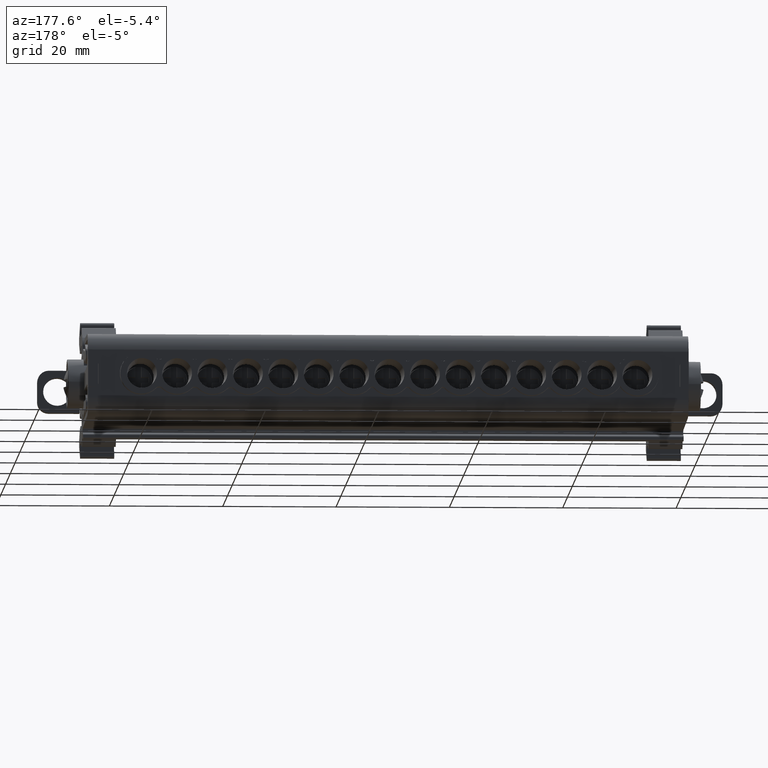
[diagram: clean part render]
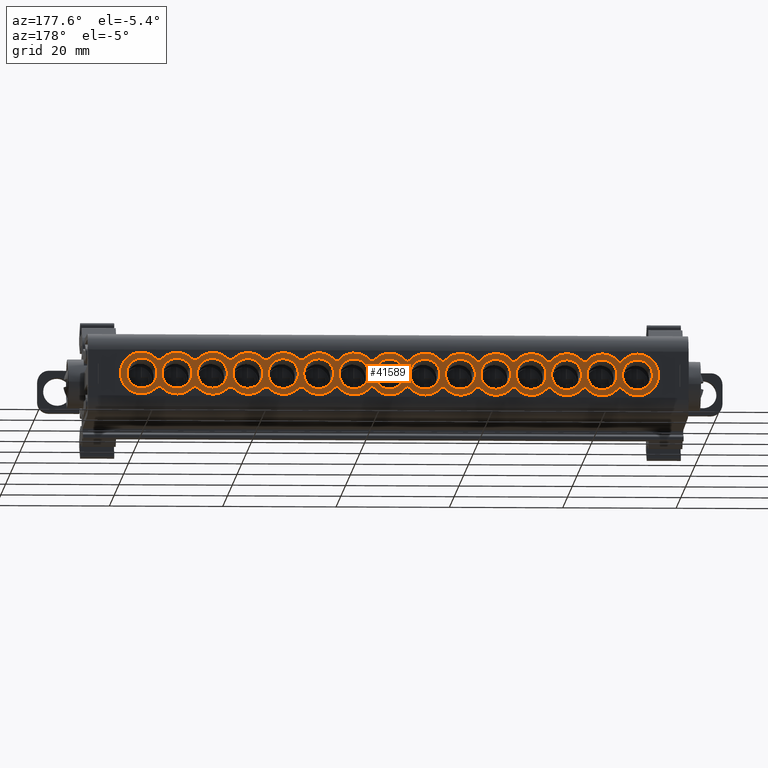
[diagram: same view with one face highlighted and labeled with its STEP entity id]
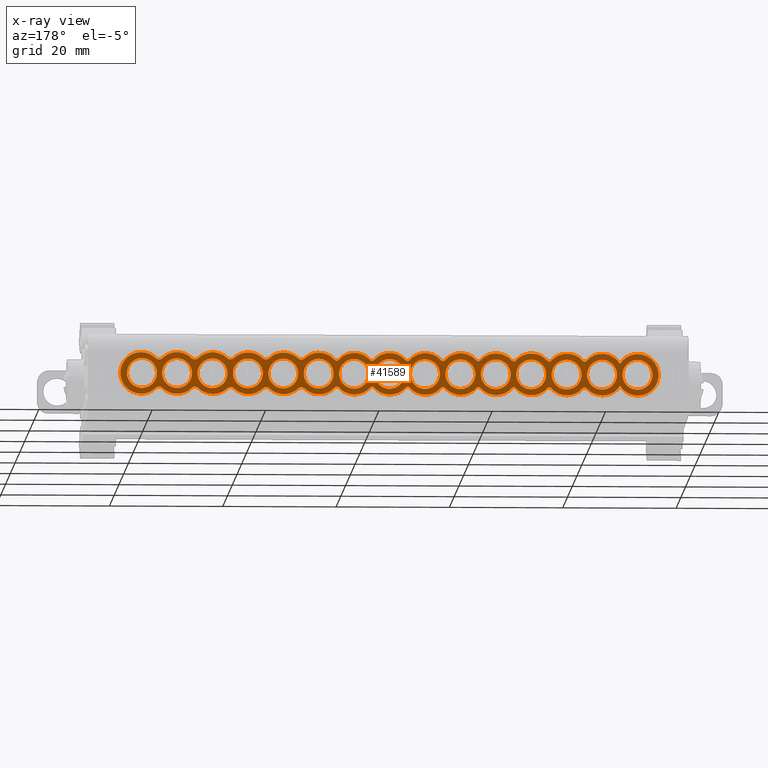
[diagram: x-ray of the same camera — body ghosted, the highlighted face saturated]
A machine part, auxiliary view. The second image highlights one B-rep face of the part: STEP entity #41589.
The next image is the same camera in x-ray: the body ghosted, the highlighted face saturated — about 0% of this face is hidden behind the body in this view.
In plain terms, the highlighted planar face has unit normal (-0, 1, 0).
Its self-contained STEP definition (entity closure, byte-faithful):
#45 = B_SPLINE_CURVE_WITH_KNOTS ( 'NONE', 3,
 ( #21942, #21935, #21927, #21940, #21943, #21951, #21952, #21973, #21999, #21961, #21988, #22008, #21994, #22006, #21963, #21962, #21971, #21959, #22007, #21969 ),
 .UNSPECIFIED., .F., .F.,
 ( 4, 2, 2, 2, 2, 2, 2, 2, 2, 4 ),
 ( 0.0000000000000000000, 0.06249999999998462300, 0.1249999999999682300, 0.1874999999999528700, 0.2187499999999446800, 0.2499999999999374700, 0.2812499999999292800, 0.3124999999999209500, 0.3749999999999225600, 0.3968522582608600100 ),
 .UNSPECIFIED. ) ;
#49 = B_SPLINE_CURVE_WITH_KNOTS ( 'NONE', 3,
 ( #22037, #22019, #22027, #22039, #22046, #22013 ),
 .UNSPECIFIED., .F., .F.,
 ( 4, 2, 4 ),
 ( 0.0000000000000000000, 0.0005303970045298218800, 0.001345935747758163900 ),
 .UNSPECIFIED. ) ;
#328 = CIRCLE ( 'NONE', #442, 3.689018820792755400 ) ;
#428 = CIRCLE ( 'NONE', #465, 3.689018820792755400 ) ;
#435 = AXIS2_PLACEMENT_3D ( 'NONE', #13646, #13653, #13639 ) ;
#437 = CIRCLE ( 'NONE', #504, 3.689018820792755400 ) ;
#439 = CIRCLE ( 'NONE', #544, 3.689018820792783000 ) ;
#442 = AXIS2_PLACEMENT_3D ( 'NONE', #13412, #13419, #13416 ) ;
#446 = CIRCLE ( 'NONE', #454, 3.689018820792866500 ) ;
#451 = AXIS2_PLACEMENT_3D ( 'NONE', #13538, #13523, #13557 ) ;
#453 = CIRCLE ( 'NONE', #526, 3.689018820792755400 ) ;
#454 = AXIS2_PLACEMENT_3D ( 'NONE', #13547, #13532, #13548 ) ;
#456 = CIRCLE ( 'NONE', #451, 3.689018820792755400 ) ;
#461 = CIRCLE ( 'NONE', #518, 3.689018820792838900 ) ;
#465 = AXIS2_PLACEMENT_3D ( 'NONE', #13582, #13598, #13584 ) ;
#469 = AXIS2_PLACEMENT_3D ( 'NONE', #13579, #13580, #13595 ) ;
#470 = CIRCLE ( 'NONE', #435, 3.689018820792755400 ) ;
#472 = AXIS2_PLACEMENT_3D ( 'NONE', #13581, #13586, #13622 ) ;
#483 = CARTESIAN_POINT ( 'NONE',  ( -270.1594392833574100, -97.87231465558903700, 140.9265447534639600 ) ) ;
#484 = DIRECTION ( 'NONE',  ( 0.0000000000000000000, 4.731064025391485100E-014, -1.000000000000000000 ) ) ;
#493 = DIRECTION ( 'NONE',  ( -1.093823984703511800E-014, 1.000000000000000000, 4.711132522582066900E-014 ) ) ;
#495 = CIRCLE ( 'NONE', #498, 3.689018820792755400 ) ;
#498 = AXIS2_PLACEMENT_3D ( 'NONE', #13546, #13528, #13529 ) ;
#499 = CIRCLE ( 'NONE', #530, 3.689018820792755400 ) ;
#502 = DIRECTION ( 'NONE',  ( 0.0000000000000000000, 4.731064025391485100E-014, -1.000000000000000000 ) ) ;
#504 = AXIS2_PLACEMENT_3D ( 'NONE', #13593, #13570, #13587 ) ;
#510 = CARTESIAN_POINT ( 'NONE',  ( -282.6594392833573600, -97.87231465558926400, 140.9265447534639900 ) ) ;
#511 = CIRCLE ( 'NONE', #472, 3.689018820792811000 ) ;
#512 = CIRCLE ( 'NONE', #469, 3.689018820792755400 ) ;
#518 = AXIS2_PLACEMENT_3D ( 'NONE', #13562, #13521, #13537 ) ;
#520 = CIRCLE ( 'NONE', #522, 3.689018820792699900 ) ;
#522 = AXIS2_PLACEMENT_3D ( 'NONE', #13614, #13610, #13628 ) ;
#526 = AXIS2_PLACEMENT_3D ( 'NONE', #13531, #13517, #13561 ) ;
#529 = DIRECTION ( 'NONE',  ( -1.093823984703511800E-014, 1.000000000000000000, 4.711132522582066900E-014 ) ) ;
#530 = AXIS2_PLACEMENT_3D ( 'NONE', #13467, #13464, #13480 ) ;
#535 = CIRCLE ( 'NONE', #568, 2.639999999999892200 ) ;
#544 = AXIS2_PLACEMENT_3D ( 'NONE', #13640, #13631, #13652 ) ;
#547 = CIRCLE ( 'NONE', #588, 2.639999999999892200 ) ;
#556 = CIRCLE ( 'NONE', #607, 3.689018820793116000 ) ;
#558 = CIRCLE ( 'NONE', #576, 2.639999999999892200 ) ;
#561 = AXIS2_PLACEMENT_3D ( 'NONE', #13820, #13824, #13831 ) ;
#562 = AXIS2_PLACEMENT_3D ( 'NONE', #13795, #13763, #13796 ) ;
#565 = CIRCLE ( 'NONE', #591, 3.689018820793172000 ) ;
#568 = AXIS2_PLACEMENT_3D ( 'NONE', #13794, #13785, #13814 ) ;
#576 = AXIS2_PLACEMENT_3D ( 'NONE', #13715, #13751, #13739 ) ;
#582 = CIRCLE ( 'NONE', #598, 3.689018820792755400 ) ;
#584 = CIRCLE ( 'NONE', #562, 2.639999999999892200 ) ;
#588 = AXIS2_PLACEMENT_3D ( 'NONE', #13778, #13770, #13791 ) ;
#591 = AXIS2_PLACEMENT_3D ( 'NONE', #13738, #13752, #13742 ) ;
#598 = AXIS2_PLACEMENT_3D ( 'NONE', #13676, #13667, #13677 ) ;
#600 = AXIS2_PLACEMENT_3D ( 'NONE', #13836, #13827, #13852 ) ;
#602 = CIRCLE ( 'NONE', #604, 2.639999999999892200 ) ;
#604 = AXIS2_PLACEMENT_3D ( 'NONE', #13849, #13850, #13863 ) ;
#605 = CIRCLE ( 'NONE', #561, 3.689018820792699900 ) ;
#607 = AXIS2_PLACEMENT_3D ( 'NONE', #13909, #13891, #13892 ) ;
#610 = CIRCLE ( 'NONE', #600, 3.689018820793144000 ) ;
#614 = AXIS2_PLACEMENT_3D ( 'NONE', #13952, #13935, #13922 ) ;
#626 = DIRECTION ( 'NONE',  ( 0.0000000000000000000, 4.731064025391485100E-014, -1.000000000000000000 ) ) ;
#634 = CIRCLE ( 'NONE', #637, 3.689018820793199500 ) ;
#637 = AXIS2_PLACEMENT_3D ( 'NONE', #13894, #13890, #13903 ) ;
#653 = CIRCLE ( 'NONE', #660, 3.672037562466701200 ) ;
#660 = AXIS2_PLACEMENT_3D ( 'NONE', #13905, #13908, #13910 ) ;
#666 = DIRECTION ( 'NONE',  ( -1.093823984703511800E-014, 1.000000000000000000, 4.711132522582066900E-014 ) ) ;
#668 = CARTESIAN_POINT ( 'NONE',  ( -257.6594392833573000, -97.87231465558882300, 140.9265447534638700 ) ) ;
#669 = CIRCLE ( 'NONE', #678, 2.639999999999892200 ) ;
#671 = CIRCLE ( 'NONE', #674, 3.689018820793172000 ) ;
#674 = AXIS2_PLACEMENT_3D ( 'NONE', #13936, #13950, #13930 ) ;
#676 = CIRCLE ( 'NONE', #614, 3.689018820792783000 ) ;
#678 = AXIS2_PLACEMENT_3D ( 'NONE', #13953, #13929, #13955 ) ;
#725 = CIRCLE ( 'NONE', #727, 2.639999999999892200 ) ;
#727 = AXIS2_PLACEMENT_3D ( 'NONE', #13920, #13946, #13934 ) ;
#729 = CIRCLE ( 'NONE', #737, 3.689018820793116000 ) ;
#734 = CIRCLE ( 'NONE', #815, 2.639999999999892200 ) ;
#735 = CIRCLE ( 'NONE', #816, 2.639999999999892200 ) ;
#737 = AXIS2_PLACEMENT_3D ( 'NONE', #13959, #13960, #13961 ) ;
#741 = AXIS2_PLACEMENT_3D ( 'NONE', #13967, #14007, #13995 ) ;
#745 = AXIS2_PLACEMENT_3D ( 'NONE', #14156, #14159, #14160 ) ;
#747 = AXIS2_PLACEMENT_3D ( 'NONE', #14000, #14009, #13969 ) ;
#749 = CIRCLE ( 'NONE', #769, 2.639999999999892200 ) ;
#757 = AXIS2_PLACEMENT_3D ( 'NONE', #13993, #14002, #13975 ) ;
#759 = CIRCLE ( 'NONE', #807, 2.639999999999892200 ) ;
#761 = CIRCLE ( 'NONE', #789, 2.639999999999892200 ) ;
#763 = CIRCLE ( 'NONE', #809, 3.689018820792477900 ) ;
#766 = CIRCLE ( 'NONE', #741, 3.689018820793172000 ) ;
#769 = AXIS2_PLACEMENT_3D ( 'NONE', #14157, #14166, #14119 ) ;
#780 = CIRCLE ( 'NONE', #745, 2.639999999999892200 ) ;
#782 = CIRCLE ( 'NONE', #828, 2.639999999999892200 ) ;
#789 = AXIS2_PLACEMENT_3D ( 'NONE', #14040, #14046, #14041 ) ;
#795 = AXIS2_PLACEMENT_3D ( 'NONE', #13208, #13211, #13200 ) ;
#805 = CIRCLE ( 'NONE', #814, 2.639999999999892200 ) ;
#807 = AXIS2_PLACEMENT_3D ( 'NONE', #13988, #13964, #13990 ) ;
#809 = AXIS2_PLACEMENT_3D ( 'NONE', #14031, #14016, #14032 ) ;
#812 = CIRCLE ( 'NONE', #839, 2.639999999999892200 ) ;
#814 = AXIS2_PLACEMENT_3D ( 'NONE', #14141, #14151, #14165 ) ;
#815 = AXIS2_PLACEMENT_3D ( 'NONE', #14012, #13974, #13966 ) ;
#816 = AXIS2_PLACEMENT_3D ( 'NONE', #14014, #13977, #13971 ) ;
#824 = CARTESIAN_POINT ( 'NONE',  ( -263.9094392833574100, -97.87231465558893700, 140.9265447534639300 ) ) ;
#828 = AXIS2_PLACEMENT_3D ( 'NONE', #14244, #14236, #14259 ) ;
#833 = CIRCLE ( 'NONE', #795, 2.639999999999892200 ) ;
#839 = AXIS2_PLACEMENT_3D ( 'NONE', #14066, #14090, #14091 ) ;
#842 = CIRCLE ( 'NONE', #757, 3.689018820793199500 ) ;
#846 = DIRECTION ( 'NONE',  ( -1.093823984703511800E-014, 1.000000000000000000, 4.711132522582066900E-014 ) ) ;
#847 = CIRCLE ( 'NONE', #747, 3.689018820792783000 ) ;
#881 = DIRECTION ( 'NONE',  ( 0.0000000000000000000, 4.731064025391485100E-014, -1.000000000000000000 ) ) ;
#921 = DIRECTION ( 'NONE',  ( -1.093823984703511800E-014, 1.000000000000000000, 4.711132522582066900E-014 ) ) ;
#923 = DIRECTION ( 'NONE',  ( -1.093823984703511800E-014, 1.000000000000000000, 4.711132522582066900E-014 ) ) ;
#934 = DIRECTION ( 'NONE',  ( 0.0000000000000000000, 4.731064025391485100E-014, -1.000000000000000000 ) ) ;
#940 = DIRECTION ( 'NONE',  ( 0.0000000000000000000, 4.731064025391485100E-014, -1.000000000000000000 ) ) ;
#942 = DIRECTION ( 'NONE',  ( -1.093823984703511800E-014, 1.000000000000000000, 4.711132522582066900E-014 ) ) ;
#944 = DIRECTION ( 'NONE',  ( 0.0000000000000000000, 4.731064025391485100E-014, -1.000000000000000000 ) ) ;
#946 = CARTESIAN_POINT ( 'NONE',  ( -276.4094392833573600, -97.87231465558915000, 140.9265447534639900 ) ) ;
#985 = CARTESIAN_POINT ( 'NONE',  ( -288.9094392833573000, -97.87231465558937800, 140.9265447534640100 ) ) ;
#1008 = CARTESIAN_POINT ( 'NONE',  ( -213.9094392833573600, -97.87231465558804200, 140.9265447534637000 ) ) ;
#1023 = DIRECTION ( 'NONE',  ( 0.0000000000000000000, 4.731064025391485100E-014, -1.000000000000000000 ) ) ;
#1043 = DIRECTION ( 'NONE',  ( 0.0000000000000000000, 4.731064025391485100E-014, -1.000000000000000000 ) ) ;
#1051 = DIRECTION ( 'NONE',  ( -1.093823984703511800E-014, 1.000000000000000000, 4.711132522582066900E-014 ) ) ;
#1059 = CARTESIAN_POINT ( 'NONE',  ( -207.6594392833573600, -97.87231465558792800, 140.9265447534636500 ) ) ;
#1065 = CARTESIAN_POINT ( 'NONE',  ( -238.9094392833573900, -97.87231465558848200, 140.9265447534638200 ) ) ;
#1066 = DIRECTION ( 'NONE',  ( -1.093823984703511800E-014, 1.000000000000000000, 4.711132522582066900E-014 ) ) ;
#1298 = CARTESIAN_POINT ( 'NONE',  ( -201.3285594886386300, -97.87231465558784300, 140.9265447534634200 ) ) ;
#1300 = DIRECTION ( 'NONE',  ( -1.094038394468765300E-014, 1.000000000000000000, 4.711469516094839500E-014 ) ) ;
#1301 = DIRECTION ( 'NONE',  ( -7.523836815140300700E-015, 4.890493929841195000E-014, -1.000000000000000000 ) ) ;
#1315 = DIRECTION ( 'NONE',  ( -1.094038394468765300E-014, 1.000000000000000000, 4.711469516094839500E-014 ) ) ;
#1323 = DIRECTION ( 'NONE',  ( 0.0000000000000000000, 4.731064025391485100E-014, -1.000000000000000000 ) ) ;
#1342 = DIRECTION ( 'NONE',  ( -7.523836815140300700E-015, 4.890493929841195000E-014, -1.000000000000000000 ) ) ;
#1380 = CARTESIAN_POINT ( 'NONE',  ( -201.3285594886386300, -97.87231465558784300, 140.9265447534634200 ) ) ;
#1382 = DIRECTION ( 'NONE',  ( -1.093823984703511800E-014, 1.000000000000000000, 4.711132522582066900E-014 ) ) ;
#1386 = CARTESIAN_POINT ( 'NONE',  ( -226.4094392833573900, -97.87231465558826900, 140.9265447534637600 ) ) ;
#1401 = DIRECTION ( 'NONE',  ( -1.094398869469770600E-014, 1.000000000000000000, 4.711647090933377100E-014 ) ) ;
#1425 = CARTESIAN_POINT ( 'NONE',  ( -288.9685594886381100, -97.87231465558882300, 140.9265447534640100 ) ) ;
#1427 = DIRECTION ( 'NONE',  ( 0.0000000000000000000, 4.890493929841562900E-014, -1.000000000000000000 ) ) ;
#1461 = DIRECTION ( 'NONE',  ( -1.094038394468765300E-014, 1.000000000000000000, 4.711469516094839500E-014 ) ) ;
#1470 = DIRECTION ( 'NONE',  ( -7.523836815141659100E-015, 4.890493929842077900E-014, -1.000000000000000000 ) ) ;
#1490 = CARTESIAN_POINT ( 'NONE',  ( -207.6585594886386700, -97.87231465558792800, 140.9265447534634200 ) ) ;
#1508 = DIRECTION ( 'NONE',  ( -7.523836815140242300E-015, 4.890493929841157700E-014, -1.000000000000000000 ) ) ;
#1530 = CARTESIAN_POINT ( 'NONE',  ( -213.9885594886386900, -97.87231465558798500, 140.9265447534634700 ) ) ;
#1531 = CARTESIAN_POINT ( 'NONE',  ( -245.2185594886381900, -97.87231465558834000, 140.9265447534638200 ) ) ;
#1538 = DIRECTION ( 'NONE',  ( -7.523836815140187100E-015, 4.890493929841121100E-014, -1.000000000000000000 ) ) ;
#1541 = DIRECTION ( 'NONE',  ( -1.094398869469770600E-014, 1.000000000000000000, 4.711647090933377100E-014 ) ) ;
#1550 = DIRECTION ( 'NONE',  ( -1.093823984703511800E-014, 1.000000000000000000, 4.711132522582066900E-014 ) ) ;
#1551 = CARTESIAN_POINT ( 'NONE',  ( -220.2385594886387400, -97.87231465558807000, 140.9265447534634700 ) ) ;
#1556 = DIRECTION ( 'NONE',  ( -1.094038394468765300E-014, 1.000000000000000000, 4.711469516094839500E-014 ) ) ;
#1565 = DIRECTION ( 'NONE',  ( 0.0000000000000000000, 4.731064025391485100E-014, -1.000000000000000000 ) ) ;
#1586 = DIRECTION ( 'NONE',  ( -7.523836815140242300E-015, 4.890493929841157700E-014, -1.000000000000000000 ) ) ;
#1613 = DIRECTION ( 'NONE',  ( -1.094038394468765300E-014, 1.000000000000000000, 4.711469516094839500E-014 ) ) ;
#1644 = CARTESIAN_POINT ( 'NONE',  ( -251.4094392833573600, -97.87231465558871000, 140.9265447534638700 ) ) ;
#1671 = DIRECTION ( 'NONE',  ( -1.093823984703511800E-014, 1.000000000000000000, 4.711132522582066900E-014 ) ) ;
#1686 = DIRECTION ( 'NONE',  ( -1.093823984703511800E-014, 1.000000000000000000, 4.711132522582066900E-014 ) ) ;
#1743 = DIRECTION ( 'NONE',  ( 0.0000000000000000000, 4.731064025391485100E-014, -1.000000000000000000 ) ) ;
#1769 = DIRECTION ( 'NONE',  ( 0.0000000000000000000, 4.731064025391485100E-014, -1.000000000000000000 ) ) ;
#1786 = CARTESIAN_POINT ( 'NONE',  ( -232.6594392833574100, -97.87231465558838300, 140.9265447534637600 ) ) ;
#1792 = CARTESIAN_POINT ( 'NONE',  ( -220.1594392833574100, -97.87231465558815600, 140.9265447534637000 ) ) ;
#1835 = DIRECTION ( 'NONE',  ( 0.0000000000000000000, 4.731064025391485100E-014, -1.000000000000000000 ) ) ;
#1888 = CARTESIAN_POINT ( 'NONE',  ( -245.1594392833574100, -97.87231465558859600, 140.9265447534638200 ) ) ;
#1892 = DIRECTION ( 'NONE',  ( -1.093823984703511800E-014, 1.000000000000000000, 4.711132522582066900E-014 ) ) ;
#1957 = CARTESIAN_POINT ( 'NONE',  ( -226.4885594886387100, -97.87231465558812700, 140.9265447534635300 ) ) ;
#1965 = DIRECTION ( 'NONE',  ( -7.558630635843504700E-015, 4.535178381506102500E-014, -1.000000000000000000 ) ) ;
#2027 = DIRECTION ( 'NONE',  ( -1.094038394468765300E-014, 1.000000000000000000, 4.711469516094839500E-014 ) ) ;
#2134 = DIRECTION ( 'NONE',  ( 0.0000000000000000000, 4.890493929841562900E-014, -1.000000000000000000 ) ) ;
#2140 = DIRECTION ( 'NONE',  ( -1.094398869469770600E-014, 1.000000000000000000, 4.711647090933377100E-014 ) ) ;
#2215 = CARTESIAN_POINT ( 'NONE',  ( -288.9685594886381100, -97.87231465558882300, 140.9265447534640100 ) ) ;
#7629 = VERTEX_POINT ( 'NONE', #19980 ) ;
#7631 = VERTEX_POINT ( 'NONE', #19999 ) ;
#7634 = VERTEX_POINT ( 'NONE', #19997 ) ;
#7639 = VERTEX_POINT ( 'NONE', #19984 ) ;
#7641 = VERTEX_POINT ( 'NONE', #19989 ) ;
#7642 = VERTEX_POINT ( 'NONE', #19992 ) ;
#7645 = VERTEX_POINT ( 'NONE', #19993 ) ;
#7647 = VERTEX_POINT ( 'NONE', #19937 ) ;
#7650 = VERTEX_POINT ( 'NONE', #20062 ) ;
#7653 = VERTEX_POINT ( 'NONE', #20055 ) ;
#7654 = VERTEX_POINT ( 'NONE', #20010 ) ;
#7660 = VERTEX_POINT ( 'NONE', #20063 ) ;
#7686 = VERTEX_POINT ( 'NONE', #20048 ) ;
#7884 = EDGE_CURVE ( 'NONE', #39900, #39916, #18561, .T. ) ;
#7888 = EDGE_CURVE ( 'NONE', #39914, #39901, #18512, .T. ) ;
#7912 = EDGE_CURVE ( 'NONE', #39856, #39821, #18502, .T. ) ;
#8002 = EDGE_CURVE ( 'NONE', #39968, #39886, #18581, .T. ) ;
#8026 = EDGE_CURVE ( 'NONE', #39880, #39931, #18592, .T. ) ;
#8033 = EDGE_CURVE ( 'NONE', #10427, #10423, #18622, .T. ) ;
#8042 = EDGE_CURVE ( 'NONE', #39882, #39970, #18577, .T. ) ;
#8051 = EDGE_CURVE ( 'NONE', #10465, #10418, #18624, .T. ) ;
#8058 = EDGE_CURVE ( 'NONE', #10345, #10395, #18638, .T. ) ;
#8173 = EDGE_CURVE ( 'NONE', #10347, #10421, #18715, .T. ) ;
#8184 = EDGE_CURVE ( 'NONE', #10412, #10411, #18713, .T. ) ;
#8238 = EDGE_CURVE ( 'NONE', #10386, #10406, #18688, .T. ) ;
#8245 = EDGE_CURVE ( 'NONE', #10360, #10350, #18707, .T. ) ;
#8259 = EDGE_CURVE ( 'NONE', #10443, #10417, #18745, .T. ) ;
#8266 = EDGE_CURVE ( 'NONE', #10409, #10464, #18746, .T. ) ;
#8299 = EDGE_CURVE ( 'NONE', #10388, #10365, #18763, .T. ) ;
#8322 = EDGE_CURVE ( 'NONE', #10437, #10414, #18762, .T. ) ;
#8362 = EDGE_CURVE ( 'NONE', #10415, #10527, #18842, .T. ) ;
#8395 = EDGE_CURVE ( 'NONE', #10440, #10412, #18811, .T. ) ;
#8414 = EDGE_CURVE ( 'NONE', #10431, #10415, #18887, .T. ) ;
#8432 = EDGE_CURVE ( 'NONE', #10449, #10462, #18902, .T. ) ;
#8434 = EDGE_CURVE ( 'NONE', #10436, #10467, #18848, .T. ) ;
#8439 = EDGE_CURVE ( 'NONE', #10455, #10520, #18863, .T. ) ;
#10261 = ORIENTED_EDGE ( 'NONE', *, *, #24351, .T. ) ;
#10264 = ORIENTED_EDGE ( 'NONE', *, *, #24211, .T. ) ;
#10265 = ORIENTED_EDGE ( 'NONE', *, *, #24265, .T. ) ;
#10267 = ORIENTED_EDGE ( 'NONE', *, *, #24270, .T. ) ;
#10268 = ORIENTED_EDGE ( 'NONE', *, *, #24288, .T. ) ;
#10269 = ORIENTED_EDGE ( 'NONE', *, *, #24312, .T. ) ;
#10271 = ORIENTED_EDGE ( 'NONE', *, *, #24243, .T. ) ;
#10345 = VERTEX_POINT ( 'NONE', #16133 ) ;
#10347 = VERTEX_POINT ( 'NONE', #16098 ) ;
#10350 = VERTEX_POINT ( 'NONE', #16110 ) ;
#10360 = VERTEX_POINT ( 'NONE', #16103 ) ;
#10365 = VERTEX_POINT ( 'NONE', #16125 ) ;
#10386 = VERTEX_POINT ( 'NONE', #16188 ) ;
#10388 = VERTEX_POINT ( 'NONE', #16139 ) ;
#10395 = VERTEX_POINT ( 'NONE', #16201 ) ;
#10406 = VERTEX_POINT ( 'NONE', #16198 ) ;
#10409 = VERTEX_POINT ( 'NONE', #16177 ) ;
#10411 = VERTEX_POINT ( 'NONE', #16157 ) ;
#10412 = VERTEX_POINT ( 'NONE', #16204 ) ;
#10414 = VERTEX_POINT ( 'NONE', #16158 ) ;
#10415 = VERTEX_POINT ( 'NONE', #16162 ) ;
#10417 = VERTEX_POINT ( 'NONE', #16209 ) ;
#10418 = VERTEX_POINT ( 'NONE', #16160 ) ;
#10421 = VERTEX_POINT ( 'NONE', #16161 ) ;
#10423 = VERTEX_POINT ( 'NONE', #16179 ) ;
#10427 = VERTEX_POINT ( 'NONE', #16212 ) ;
#10431 = VERTEX_POINT ( 'NONE', #16193 ) ;
#10434 = VERTEX_POINT ( 'NONE', #16180 ) ;
#10436 = VERTEX_POINT ( 'NONE', #16214 ) ;
#10437 = VERTEX_POINT ( 'NONE', #16181 ) ;
#10440 = VERTEX_POINT ( 'NONE', #16172 ) ;
#10443 = VERTEX_POINT ( 'NONE', #16170 ) ;
#10449 = VERTEX_POINT ( 'NONE', #16197 ) ;
#10455 = VERTEX_POINT ( 'NONE', #16207 ) ;
#10462 = VERTEX_POINT ( 'NONE', #16258 ) ;
#10464 = VERTEX_POINT ( 'NONE', #16248 ) ;
#10465 = VERTEX_POINT ( 'NONE', #16239 ) ;
#10467 = VERTEX_POINT ( 'NONE', #16232 ) ;
#10482 = VERTEX_POINT ( 'NONE', #16250 ) ;
#10502 = VERTEX_POINT ( 'NONE', #16236 ) ;
#10515 = VERTEX_POINT ( 'NONE', #16218 ) ;
#10520 = VERTEX_POINT ( 'NONE', #16234 ) ;
#10527 = VERTEX_POINT ( 'NONE', #16241 ) ;
#10983 = EDGE_LOOP ( 'NONE', ( #21410, #21344 ) ) ;
#10990 = EDGE_LOOP ( 'NONE', ( #21352, #21346 ) ) ;
#10992 = EDGE_LOOP ( 'NONE', ( #21361, #21420 ) ) ;
#10994 = EDGE_LOOP ( 'NONE', ( #21421, #21310 ) ) ;
#10998 = EDGE_LOOP ( 'NONE', ( #21402, #21397, #21411, #21377 ) ) ;
#11003 = EDGE_LOOP ( 'NONE', ( #21403, #21324 ) ) ;
#11005 = EDGE_LOOP ( 'NONE', ( #21322, #21405 ) ) ;
#11006 = EDGE_LOOP ( 'NONE', ( #21412, #21391 ) ) ;
#11010 = EDGE_LOOP ( 'NONE', ( #21370, #21404 ) ) ;
#11011 = EDGE_LOOP ( 'NONE', ( #21419, #21401 ) ) ;
#11026 = EDGE_LOOP ( 'NONE', ( #21386, #21424 ) ) ;
#11028 = EDGE_LOOP ( 'NONE', ( #21396, #21345 ) ) ;
#11030 = EDGE_LOOP ( 'NONE', ( #21371, #21398, #21387, #21423, #21399, #21400 ) ) ;
#11033 = EDGE_LOOP ( 'NONE', ( #21323, #21408 ) ) ;
#11035 = EDGE_LOOP ( 'NONE', ( #21372, #21415, #21390, #12710, #12697, #12685, #12678, #12702, #12690, #17164, #21422, #12679, #12674, #10268, #12707, #12673, #10264, #12684, #12705, #12676, #12699, #12696, #12701, #12695, #12689, #12671, #10265, #10261, #12687, #12698, #10267, #12686, #12709, #10269, #12682, #12672, #12669, #12681, #12700, #12711, #12688, #21382, #12712, #12670, #12683, #12668, #12667, #12704, #12677, #10271, #12714, #21374, #12706, #21376, #12692, #12703, #21395, #12694, #12691, #12693, #21384, #21389, #12680, #12713, #12708, #12675, #19052, #19097, #19064, #19083 ) ) ;
#11039 = EDGE_LOOP ( 'NONE', ( #21394, #21378 ) ) ;
#11744 = AXIS2_PLACEMENT_3D ( 'NONE', #39183, #39168, #39174 ) ;
#12667 = ORIENTED_EDGE ( 'NONE', *, *, #24234, .T. ) ;
#12668 = ORIENTED_EDGE ( 'NONE', *, *, #8439, .T. ) ;
#12669 = ORIENTED_EDGE ( 'NONE', *, *, #8184, .T. ) ;
#12670 = ORIENTED_EDGE ( 'NONE', *, *, #24290, .T. ) ;
#12671 = ORIENTED_EDGE ( 'NONE', *, *, #24292, .T. ) ;
#12672 = ORIENTED_EDGE ( 'NONE', *, *, #8395, .T. ) ;
#12673 = ORIENTED_EDGE ( 'NONE', *, *, #24247, .T. ) ;
#12674 = ORIENTED_EDGE ( 'NONE', *, *, #24194, .T. ) ;
#12675 = ORIENTED_EDGE ( 'NONE', *, *, #23907, .T. ) ;
#12676 = ORIENTED_EDGE ( 'NONE', *, *, #24258, .T. ) ;
#12677 = ORIENTED_EDGE ( 'NONE', *, *, #8322, .T. ) ;
#12678 = ORIENTED_EDGE ( 'NONE', *, *, #8414, .T. ) ;
#12679 = ORIENTED_EDGE ( 'NONE', *, *, #24246, .T. ) ;
#12680 = ORIENTED_EDGE ( 'NONE', *, *, #23974, .T. ) ;
#12681 = ORIENTED_EDGE ( 'NONE', *, *, #24268, .T. ) ;
#12682 = ORIENTED_EDGE ( 'NONE', *, *, #24250, .T. ) ;
#12683 = ORIENTED_EDGE ( 'NONE', *, *, #24237, .T. ) ;
#12684 = ORIENTED_EDGE ( 'NONE', *, *, #24232, .T. ) ;
#12685 = ORIENTED_EDGE ( 'NONE', *, *, #24195, .T. ) ;
#12686 = ORIENTED_EDGE ( 'NONE', *, *, #24289, .T. ) ;
#12687 = ORIENTED_EDGE ( 'NONE', *, *, #24277, .T. ) ;
#12688 = ORIENTED_EDGE ( 'NONE', *, *, #24262, .T. ) ;
#12689 = ORIENTED_EDGE ( 'NONE', *, *, #24271, .T. ) ;
#12690 = ORIENTED_EDGE ( 'NONE', *, *, #24219, .T. ) ;
#12691 = ORIENTED_EDGE ( 'NONE', *, *, #24205, .T. ) ;
#12692 = ORIENTED_EDGE ( 'NONE', *, *, #24273, .T. ) ;
#12693 = ORIENTED_EDGE ( 'NONE', *, *, #23860, .T. ) ;
#12694 = ORIENTED_EDGE ( 'NONE', *, *, #24274, .T. ) ;
#12695 = ORIENTED_EDGE ( 'NONE', *, *, #24260, .T. ) ;
#12696 = ORIENTED_EDGE ( 'NONE', *, *, #24313, .T. ) ;
#12697 = ORIENTED_EDGE ( 'NONE', *, *, #23940, .T. ) ;
#12698 = ORIENTED_EDGE ( 'NONE', *, *, #24295, .T. ) ;
#12699 = ORIENTED_EDGE ( 'NONE', *, *, #24256, .T. ) ;
#12700 = ORIENTED_EDGE ( 'NONE', *, *, #24282, .T. ) ;
#12701 = ORIENTED_EDGE ( 'NONE', *, *, #24227, .T. ) ;
#12702 = ORIENTED_EDGE ( 'NONE', *, *, #8362, .T. ) ;
#12703 = ORIENTED_EDGE ( 'NONE', *, *, #24294, .T. ) ;
#12704 = ORIENTED_EDGE ( 'NONE', *, *, #24267, .T. ) ;
#12705 = ORIENTED_EDGE ( 'NONE', *, *, #24210, .T. ) ;
#12706 = ORIENTED_EDGE ( 'NONE', *, *, #24208, .T. ) ;
#12707 = ORIENTED_EDGE ( 'NONE', *, *, #24190, .T. ) ;
#12708 = ORIENTED_EDGE ( 'NONE', *, *, #24209, .T. ) ;
#12709 = ORIENTED_EDGE ( 'NONE', *, *, #24266, .T. ) ;
#12710 = ORIENTED_EDGE ( 'NONE', *, *, #24182, .T. ) ;
#12711 = ORIENTED_EDGE ( 'NONE', *, *, #8432, .T. ) ;
#12712 = ORIENTED_EDGE ( 'NONE', *, *, #8238, .T. ) ;
#12713 = ORIENTED_EDGE ( 'NONE', *, *, #24244, .T. ) ;
#12714 = ORIENTED_EDGE ( 'NONE', *, *, #24278, .T. ) ;
#12783 = B_SPLINE_CURVE_WITH_KNOTS ( 'NONE', 3,
 ( #13898, #13871, #13876, #13914, #13916, #13877 ),
 .UNSPECIFIED., .F., .F.,
 ( 4, 2, 4 ),
 ( 3.925231146709438500E-017, 0.0003940394017902670700, 0.0007880788035804949000 ),
 .UNSPECIFIED. ) ;
#12785 = B_SPLINE_CURVE_WITH_KNOTS ( 'NONE', 3,
 ( #13881, #13885, #13879, #13893, #13868, #13869, #13895, #13873 ),
 .UNSPECIFIED., .F., .F.,
 ( 4, 2, 2, 4 ),
 ( 0.0000000000000000000, 0.0003259827964324664100, 0.0006519655928649328300, 0.001303931185729948700 ),
 .UNSPECIFIED. ) ;
#12787 = B_SPLINE_CURVE_WITH_KNOTS ( 'NONE', 3,
 ( #13949, #13924, #13932, #13943, #13939, #13954 ),
 .UNSPECIFIED., .F., .F.,
 ( 4, 2, 4 ),
 ( 3.925231146709437900E-017, 0.0003939909740318593900, 0.0007879819480636795300 ),
 .UNSPECIFIED. ) ;
#12788 = B_SPLINE_CURVE_WITH_KNOTS ( 'NONE', 3,
 ( #13941, #13942, #13956, #13917, #13919, #13927 ),
 .UNSPECIFIED., .F., .F.,
 ( 4, 2, 4 ),
 ( 3.925231146709437900E-017, 0.0003939909740317924900, 0.0007879819480635457400 ),
 .UNSPECIFIED. ) ;
#12791 = B_SPLINE_CURVE_WITH_KNOTS ( 'NONE', 3,
 ( #13904, #13911, #13923, #13958, #13951, #13918, #13948, #13947 ),
 .UNSPECIFIED., .F., .F.,
 ( 4, 2, 2, 4 ),
 ( 0.0000000000000000000, 0.0003259827964324660400, 0.0006519655928649320700, 0.001303931185729864100 ),
 .UNSPECIFIED. ) ;
#12792 = B_SPLINE_CURVE_WITH_KNOTS ( 'NONE', 3,
 ( #14051, #14048, #14019, #14025, #14033, #14034, #14035, #14056 ),
 .UNSPECIFIED., .F., .F.,
 ( 4, 2, 2, 4 ),
 ( 0.0000000000000000000, 0.0003208199899686912400, 0.0006416399799373824900, 0.001283279959874765000 ),
 .UNSPECIFIED. ) ;
#12793 = B_SPLINE_CURVE_WITH_KNOTS ( 'NONE', 3,
 ( #13987, #14004, #14044, #14026, #14028, #14027, #14017, #14029 ),
 .UNSPECIFIED., .F., .F.,
 ( 4, 2, 2, 4 ),
 ( 0.0000000000000000000, 0.0003259827964324683100, 0.0006519655928649366200, 0.001303931185729956300 ),
 .UNSPECIFIED. ) ;
#12795 = B_SPLINE_CURVE_WITH_KNOTS ( 'NONE', 3,
 ( #14022, #14024, #14059, #14038, #14061, #14057, #14018, #14054 ),
 .UNSPECIFIED., .F., .F.,
 ( 4, 2, 2, 4 ),
 ( 0.0000000000000000000, 0.0003208199899686454400, 0.0006416399799372908700, 0.001283279959874664600 ),
 .UNSPECIFIED. ) ;
#12796 = B_SPLINE_CURVE_WITH_KNOTS ( 'NONE', 3,
 ( #13972, #13983, #14013, #13994, #13965, #13991 ),
 .UNSPECIFIED., .F., .F.,
 ( 4, 2, 4 ),
 ( 0.0000000000000000000, 0.0003939909740317728700, 0.0007879819480635457400 ),
 .UNSPECIFIED. ) ;
#12797 = B_SPLINE_CURVE_WITH_KNOTS ( 'NONE', 3,
 ( #14036, #14045, #14042, #14050, #14015, #14053, #14062, #14020 ),
 .UNSPECIFIED., .F., .F.,
 ( 4, 2, 2, 4 ),
 ( 0.0000000000000000000, 0.0003195795727942005900, 0.0006391591455884011800, 0.001278318291176802400 ),
 .UNSPECIFIED. ) ;
#12800 = B_SPLINE_CURVE_WITH_KNOTS ( 'NONE', 3,
 ( #13997, #13999, #14005, #14006, #14008, #14060 ),
 .UNSPECIFIED., .F., .F.,
 ( 4, 2, 4 ),
 ( 0.0000000000000000000, 0.0003939909740317935200, 0.0007879819480635870400 ),
 .UNSPECIFIED. ) ;
#12807 = B_SPLINE_CURVE_WITH_KNOTS ( 'NONE', 3,
 ( #14087, #14110, #14114, #14116, #14117 ),
 .UNSPECIFIED., .F., .F.,
 ( 4, 1, 4 ),
 ( 0.9983652037734722700, 0.9986988541558006200, 0.9990325045381288600 ),
 .UNSPECIFIED. ) ;
#12809 = B_SPLINE_CURVE_WITH_KNOTS ( 'NONE', 3,
 ( #14154, #14147, #14161, #14140, #14148, #14149, #14130, #14131 ),
 .UNSPECIFIED., .F., .F.,
 ( 4, 2, 2, 4 ),
 ( 0.0000000000000000000, 0.0003259827964324826800, 0.0006519655928649653600, 0.001303931185730013800 ),
 .UNSPECIFIED. ) ;
#12819 = B_SPLINE_CURVE_WITH_KNOTS ( 'NONE', 3,
 ( #14163, #14126, #14123, #14139, #14143, #14146 ),
 .UNSPECIFIED., .F., .F.,
 ( 4, 2, 4 ),
 ( 0.0000000000000000000, 0.0003939909740317734100, 0.0007879819480635468200 ),
 .UNSPECIFIED. ) ;
#12821 = B_SPLINE_CURVE_WITH_KNOTS ( 'NONE', 3,
 ( #14155, #14142, #14135, #14152, #14128, #14153 ),
 .UNSPECIFIED., .F., .F.,
 ( 4, 2, 4 ),
 ( 3.925231146709437900E-017, 0.0003939909740318137400, 0.0007879819480635882400 ),
 .UNSPECIFIED. ) ;
#12876 = B_SPLINE_CURVE_WITH_KNOTS ( 'NONE', 3,
 ( #13825, #13857, #13860, #13862, #13816, #13817 ),
 .UNSPECIFIED., .F., .F.,
 ( 4, 2, 4 ),
 ( 0.0000000000000000000, 0.0003940369230881553400, 0.0007880738461763106900 ),
 .UNSPECIFIED. ) ;
#12888 = B_SPLINE_CURVE_WITH_KNOTS ( 'NONE', 3,
 ( #13833, #13835, #13843, #13839, #13874, #13883 ),
 .UNSPECIFIED., .F., .F.,
 ( 4, 2, 4 ),
 ( 3.925231146709437900E-017, 0.0003939909740317930300, 0.0007879819480635468200 ),
 .UNSPECIFIED. ) ;
#13200 = DIRECTION ( 'NONE',  ( -2.102695122396215800E-014, 4.731064025391485100E-014, -1.000000000000000000 ) ) ;
#13208 = CARTESIAN_POINT ( 'NONE',  ( -207.6594392833573600, -97.87231465558792800, 140.9265447534636500 ) ) ;
#13211 = DIRECTION ( 'NONE',  ( 1.094398869469770600E-014, -1.000000000000000000, -4.711647090933377100E-014 ) ) ;
#13228 = CARTESIAN_POINT ( 'NONE',  ( -223.7785988111055200, -97.87231465558822700, 143.4687878959485700 ) ) ;
#13233 = CARTESIAN_POINT ( 'NONE',  ( -223.9484732895550100, -97.87231465558822700, 143.6017684752090700 ) ) ;
#13244 = CARTESIAN_POINT ( 'NONE',  ( -223.4711412925738900, -97.87231465558821200, 143.3682772733121700 ) ) ;
#13248 = CARTESIAN_POINT ( 'NONE',  ( -222.9359802521184100, -97.87231465558822700, 143.4523815837830200 ) ) ;
#13251 = CARTESIAN_POINT ( 'NONE',  ( -222.7786456877224200, -97.87231465558821200, 143.6017684752090700 ) ) ;
#13255 = CARTESIAN_POINT ( 'NONE',  ( -223.1491763328870900, -97.87231465558821200, 143.3681786186222400 ) ) ;
#13258 = CARTESIAN_POINT ( 'NONE',  ( -223.8698063347693500, -97.87231465558818400, 143.5270753403692700 ) ) ;
#13266 = CARTESIAN_POINT ( 'NONE',  ( -223.5783752130330700, -97.87231465558821200, 143.3888278337823900 ) ) ;
#13412 = CARTESIAN_POINT ( 'NONE',  ( -276.4685594886381100, -97.87231465558868100, 140.9265447534641900 ) ) ;
#13416 = DIRECTION ( 'NONE',  ( 0.0000000000000000000, 4.890493929841709900E-014, -1.000000000000000000 ) ) ;
#13419 = DIRECTION ( 'NONE',  ( -1.094398869469770600E-014, 1.000000000000000000, 4.711647090933377100E-014 ) ) ;
#13452 = CARTESIAN_POINT ( 'NONE',  ( -200.1547893330533700, -97.87231465558646400, 143.2164373226241300 ) ) ;
#13464 = DIRECTION ( 'NONE',  ( -1.094398869469770600E-014, 1.000000000000000000, 4.711647090933377100E-014 ) ) ;
#13467 = CARTESIAN_POINT ( 'NONE',  ( -282.7185594886381100, -97.87231465558875200, 140.9265447534639900 ) ) ;
#13470 = CARTESIAN_POINT ( 'NONE',  ( -198.9044542277428900, -97.87231465556608600, 141.6468698266448000 ) ) ;
#13471 = CARTESIAN_POINT ( 'NONE',  ( -198.8362222432342600, -97.87231465556601500, 140.6379724352005100 ) ) ;
#13473 = CARTESIAN_POINT ( 'NONE',  ( -199.2881477657759300, -97.87231465556595800, 139.4219502171141600 ) ) ;
#13476 = CARTESIAN_POINT ( 'NONE',  ( -199.7614172836797500, -97.87231465556611500, 142.9599074982915300 ) ) ;
#13477 = CARTESIAN_POINT ( 'NONE',  ( -198.9839657783076900, -97.87231465556600100, 140.0082221960562400 ) ) ;
#13479 = CARTESIAN_POINT ( 'NONE',  ( -199.4217855129971300, -97.87231465556594400, 139.2451053351382800 ) ) ;
#13480 = DIRECTION ( 'NONE',  ( 0.0000000000000000000, 4.890493929841709900E-014, -1.000000000000000000 ) ) ;
#13482 = CARTESIAN_POINT ( 'NONE',  ( -199.7232439452712900, -97.87231465556594400, 138.9339595284523100 ) ) ;
#13484 = CARTESIAN_POINT ( 'NONE',  ( -199.8908751016974200, -97.87231465556594400, 138.7997195769122500 ) ) ;
#13485 = CARTESIAN_POINT ( 'NONE',  ( -201.2452059232819900, -97.87231465556594400, 138.2940977707058300 ) ) ;
#13486 = CARTESIAN_POINT ( 'NONE',  ( -201.3423782993078000, -97.87231465556593000, 138.2878372313410600 ) ) ;
#13488 = CARTESIAN_POINT ( 'NONE',  ( -201.4367695051163000, -97.87231465558723200, 138.2865942921878900 ) ) ;
#13502 = CARTESIAN_POINT ( 'NONE',  ( -198.8675053729224100, -97.87231465556600100, 140.4255061202463800 ) ) ;
#13503 = CARTESIAN_POINT ( 'NONE',  ( -199.1827614176037300, -97.87231465556610000, 142.2935236042370900 ) ) ;
#13505 = CARTESIAN_POINT ( 'NONE',  ( -199.3709231561427400, -97.87231465556611500, 142.5540644542972200 ) ) ;
#13507 = CARTESIAN_POINT ( 'NONE',  ( -199.0691860731788000, -97.87231465556597200, 139.8035989786402200 ) ) ;
#13508 = CARTESIAN_POINT ( 'NONE',  ( -200.4171822696846700, -97.87231465556593000, 138.4697787147283900 ) ) ;
#13510 = CARTESIAN_POINT ( 'NONE',  ( -200.7962832517858900, -97.87231465556593000, 138.3494245270543100 ) ) ;
#13513 = CARTESIAN_POINT ( 'NONE',  ( -199.9639649522897600, -97.87231465556614300, 143.1069564763256800 ) ) ;
#13515 = CARTESIAN_POINT ( 'NONE',  ( -198.8170193120170700, -97.87231465556602900, 141.2588520169586300 ) ) ;
#13517 = DIRECTION ( 'NONE',  ( -1.094398869469770600E-014, 1.000000000000000000, 4.711647090933377100E-014 ) ) ;
#13521 = DIRECTION ( 'NONE',  ( -1.094398869469770600E-014, 1.000000000000000000, 4.711647090933377100E-014 ) ) ;
#13523 = DIRECTION ( 'NONE',  ( -1.094398869469770600E-014, 1.000000000000000000, 4.711647090933377100E-014 ) ) ;
#13528 = DIRECTION ( 'NONE',  ( -1.094398869469770600E-014, 1.000000000000000000, 4.711647090933377100E-014 ) ) ;
#13529 = DIRECTION ( 'NONE',  ( 0.0000000000000000000, 4.890493929841709900E-014, -1.000000000000000000 ) ) ;
#13531 = CARTESIAN_POINT ( 'NONE',  ( -276.4685594886381100, -97.87231465558868100, 140.9265447534639900 ) ) ;
#13532 = DIRECTION ( 'NONE',  ( -1.094398869469770600E-014, 1.000000000000000000, 4.711647090933377100E-014 ) ) ;
#13537 = DIRECTION ( 'NONE',  ( 0.0000000000000000000, 4.890493929841599500E-014, -1.000000000000000000 ) ) ;
#13538 = CARTESIAN_POINT ( 'NONE',  ( -270.2185594886381600, -97.87231465558861000, 140.9265447534641600 ) ) ;
#13546 = CARTESIAN_POINT ( 'NONE',  ( -270.2185594886381600, -97.87231465558861000, 140.9265447534639600 ) ) ;
#13547 = CARTESIAN_POINT ( 'NONE',  ( -288.9685594886381100, -97.87231465558882300, 140.9265447534640100 ) ) ;
#13548 = DIRECTION ( 'NONE',  ( 0.0000000000000000000, 4.890493929841562900E-014, -1.000000000000000000 ) ) ;
#13557 = DIRECTION ( 'NONE',  ( 0.0000000000000000000, 4.890493929841709900E-014, -1.000000000000000000 ) ) ;
#13561 = DIRECTION ( 'NONE',  ( 0.0000000000000000000, 4.890493929841709900E-014, -1.000000000000000000 ) ) ;
#13562 = CARTESIAN_POINT ( 'NONE',  ( -263.9685594886381600, -97.87231465558853900, 140.9265447534639300 ) ) ;
#13570 = DIRECTION ( 'NONE',  ( -1.094398869469770600E-014, 1.000000000000000000, 4.711647090933377100E-014 ) ) ;
#13579 = CARTESIAN_POINT ( 'NONE',  ( -238.9685594886381600, -97.87231465558826900, 140.9265447534635900 ) ) ;
#13580 = DIRECTION ( 'NONE',  ( -1.094398869469770600E-014, 1.000000000000000000, 4.711647090933377100E-014 ) ) ;
#13581 = CARTESIAN_POINT ( 'NONE',  ( -251.4685594886381100, -97.87231465558841100, 140.9265447534638700 ) ) ;
#13582 = CARTESIAN_POINT ( 'NONE',  ( -263.9685594886381600, -97.87231465558853900, 140.9265447534639300 ) ) ;
#13584 = DIRECTION ( 'NONE',  ( 0.0000000000000000000, 4.890493929841709900E-014, -1.000000000000000000 ) ) ;
#13586 = DIRECTION ( 'NONE',  ( -1.094398869469770600E-014, 1.000000000000000000, 4.711647090933377100E-014 ) ) ;
#13587 = DIRECTION ( 'NONE',  ( 0.0000000000000000000, 4.890493929841709900E-014, -1.000000000000000000 ) ) ;
#13593 = CARTESIAN_POINT ( 'NONE',  ( -251.4685594886381100, -97.87231465558841100, 140.9265447534638700 ) ) ;
#13595 = DIRECTION ( 'NONE',  ( -7.523836815141092700E-015, 4.890493929841709900E-014, -1.000000000000000000 ) ) ;
#13598 = DIRECTION ( 'NONE',  ( -1.094398869469770600E-014, 1.000000000000000000, 4.711647090933377100E-014 ) ) ;
#13610 = DIRECTION ( 'NONE',  ( -1.094398869469770600E-014, 1.000000000000000000, 4.711647090933377100E-014 ) ) ;
#13614 = CARTESIAN_POINT ( 'NONE',  ( -257.7185594886382200, -97.87231465558846800, 140.9265447534638700 ) ) ;
#13622 = DIRECTION ( 'NONE',  ( 0.0000000000000000000, 4.890493929841636700E-014, -1.000000000000000000 ) ) ;
#13628 = DIRECTION ( 'NONE',  ( 0.0000000000000000000, 4.890493929841783800E-014, -1.000000000000000000 ) ) ;
#13631 = DIRECTION ( 'NONE',  ( -1.094398869469770600E-014, 1.000000000000000000, 4.711647090933377100E-014 ) ) ;
#13639 = DIRECTION ( 'NONE',  ( 0.0000000000000000000, 4.890493929841709900E-014, -1.000000000000000000 ) ) ;
#13640 = CARTESIAN_POINT ( 'NONE',  ( -282.7185594886382200, -97.87231465558875200, 140.9265447534642100 ) ) ;
#13646 = CARTESIAN_POINT ( 'NONE',  ( -257.7185594886382200, -97.87231465558846800, 140.9265447534638700 ) ) ;
#13652 = DIRECTION ( 'NONE',  ( 0.0000000000000000000, 4.890493929841673300E-014, -1.000000000000000000 ) ) ;
#13653 = DIRECTION ( 'NONE',  ( -1.094398869469770600E-014, 1.000000000000000000, 4.711647090933377100E-014 ) ) ;
#13665 = CARTESIAN_POINT ( 'NONE',  ( -202.5915052634592300, -97.87231465558673400, 138.5271713380055000 ) ) ;
#13667 = DIRECTION ( 'NONE',  ( -1.094398869469770600E-014, 1.000000000000000000, 4.711647090933377100E-014 ) ) ;
#13675 = CARTESIAN_POINT ( 'NONE',  ( -202.7823296442223000, -97.87231465558726000, 138.6366521843033000 ) ) ;
#13676 = CARTESIAN_POINT ( 'NONE',  ( -238.9685594886381600, -97.87231465558826900, 140.9265447534635900 ) ) ;
#13677 = DIRECTION ( 'NONE',  ( -7.523836815141092700E-015, 4.890493929841709900E-014, -1.000000000000000000 ) ) ;
#13678 = CARTESIAN_POINT ( 'NONE',  ( -201.6735824020621200, -97.87231465558670600, 138.2838077656303400 ) ) ;
#13688 = CARTESIAN_POINT ( 'NONE',  ( -201.8928963842465400, -97.87231465558670600, 138.3131029865665200 ) ) ;
#13697 = CARTESIAN_POINT ( 'NONE',  ( -201.4367695051163000, -97.87231465558723200, 138.2865942921878900 ) ) ;
#13699 = CARTESIAN_POINT ( 'NONE',  ( -254.9431820816411400, -97.87231465558855300, 143.3567999065071500 ) ) ;
#13703 = CARTESIAN_POINT ( 'NONE',  ( -254.8554199384174700, -97.87231465558851100, 143.2565745992231400 ) ) ;
#13705 = CARTESIAN_POINT ( 'NONE',  ( -202.3623318530291900, -97.87231465558672000, 138.4265308493735900 ) ) ;
#13710 = CARTESIAN_POINT ( 'NONE',  ( -272.9939368956352200, -97.87231465558851100, 138.4962896004206800 ) ) ;
#13713 = CARTESIAN_POINT ( 'NONE',  ( -223.5890441887546600, -97.87231465558799900, 138.4970644634139800 ) ) ;
#13714 = CARTESIAN_POINT ( 'NONE',  ( -254.3316989193020300, -97.87231465558853900, 143.2565747357581600 ) ) ;
#13715 = CARTESIAN_POINT ( 'NONE',  ( -288.9094392833573000, -97.87231465558937800, 140.9265447534640100 ) ) ;
#13718 = CARTESIAN_POINT ( 'NONE',  ( -254.4621676872996800, -97.87231465558849700, 143.1981703104193000 ) ) ;
#13720 = CARTESIAN_POINT ( 'NONE',  ( -254.2439368956353000, -97.87231465558853900, 143.3567999065071500 ) ) ;
#13722 = CARTESIAN_POINT ( 'NONE',  ( -223.2663745235224200, -97.87231465558799900, 138.4963289137739900 ) ) ;
#13723 = CARTESIAN_POINT ( 'NONE',  ( -273.6054200579744700, -97.87231465558855300, 138.5965147711695000 ) ) ;
#13724 = CARTESIAN_POINT ( 'NONE',  ( -222.9584682159726900, -97.87231465558797100, 138.3947542152495500 ) ) ;
#13730 = CARTESIAN_POINT ( 'NONE',  ( -223.8029348555808700, -97.87231465558802800, 138.4128678951312300 ) ) ;
#13732 = CARTESIAN_POINT ( 'NONE',  ( -273.4749512899766200, -97.87231465558849700, 138.6549191965084400 ) ) ;
#13734 = CARTESIAN_POINT ( 'NONE',  ( -223.9606656885974000, -97.87231465558797100, 138.2631610417390100 ) ) ;
#13735 = CARTESIAN_POINT ( 'NONE',  ( -254.7248345065596300, -97.87231465558853900, 143.1981372800933300 ) ) ;
#13738 = CARTESIAN_POINT ( 'NONE',  ( -220.2385594886387400, -97.87231465558807000, 140.9265447534634700 ) ) ;
#13739 = DIRECTION ( 'NONE',  ( 0.0000000000000000000, 4.731064025391485100E-014, -1.000000000000000000 ) ) ;
#13742 = DIRECTION ( 'NONE',  ( -7.523836815140242300E-015, 4.890493929841157700E-014, -1.000000000000000000 ) ) ;
#13743 = CARTESIAN_POINT ( 'NONE',  ( -273.0816990388588000, -97.87231465558848200, 138.5965149077046600 ) ) ;
#13744 = CARTESIAN_POINT ( 'NONE',  ( -222.8672200090306000, -97.87231465558797100, 138.3360184712697100 ) ) ;
#13748 = CARTESIAN_POINT ( 'NONE',  ( -273.6931820816410500, -97.87231465558852500, 138.4962896004206800 ) ) ;
#13749 = CARTESIAN_POINT ( 'NONE',  ( -223.1589079115315100, -97.87231465558798500, 138.4754654049756900 ) ) ;
#13751 = DIRECTION ( 'NONE',  ( -1.093823984703511800E-014, 1.000000000000000000, 4.711132522582066900E-014 ) ) ;
#13752 = DIRECTION ( 'NONE',  ( -1.094038394468765300E-014, 1.000000000000000000, 4.711469516094839500E-014 ) ) ;
#13753 = CARTESIAN_POINT ( 'NONE',  ( -229.0082807987402600, -97.87231465558801300, 138.2554280619678500 ) ) ;
#13759 = CARTESIAN_POINT ( 'NONE',  ( -229.0870687658111000, -97.87231465558804200, 138.3297504306760900 ) ) ;
#13760 = CARTESIAN_POINT ( 'NONE',  ( -273.2122844707168400, -97.87231465558852500, 138.6549522268344100 ) ) ;
#13762 = CARTESIAN_POINT ( 'NONE',  ( -222.7886500056124200, -97.87231465558795700, 138.2608556839343800 ) ) ;
#13763 = DIRECTION ( 'NONE',  ( -1.093823984703511800E-014, 1.000000000000000000, 4.711132522582066900E-014 ) ) ;
#13770 = DIRECTION ( 'NONE',  ( -1.093823984703511800E-014, 1.000000000000000000, 4.711132522582066900E-014 ) ) ;
#13775 = CARTESIAN_POINT ( 'NONE',  ( -229.8070469245647900, -97.87231465558805600, 138.4866044005391900 ) ) ;
#13776 = CARTESIAN_POINT ( 'NONE',  ( -260.4939368956351600, -97.87231465558838300, 138.4962896004206000 ) ) ;
#13777 = CARTESIAN_POINT ( 'NONE',  ( -261.1054200579743000, -97.87231465558841100, 138.5965147711693800 ) ) ;
#13778 = CARTESIAN_POINT ( 'NONE',  ( -207.6594392833573600, -97.87231465558792800, 140.9265447534636500 ) ) ;
#13779 = CARTESIAN_POINT ( 'NONE',  ( -230.1767106021894700, -97.87231465558804200, 138.2529957827838100 ) ) ;
#13780 = CARTESIAN_POINT ( 'NONE',  ( -273.6931820816410500, -97.87231465558876700, 143.3567999065074900 ) ) ;
#13781 = CARTESIAN_POINT ( 'NONE',  ( -273.2121676872996500, -97.87231465558872400, 143.1981703104196100 ) ) ;
#13782 = CARTESIAN_POINT ( 'NONE',  ( -260.9749512899766700, -97.87231465558839700, 138.6549191965084400 ) ) ;
#13783 = CARTESIAN_POINT ( 'NONE',  ( -273.0816989193019700, -97.87231465558875200, 143.2565747357587000 ) ) ;
#13784 = CARTESIAN_POINT ( 'NONE',  ( -261.1054199384174700, -97.87231465558862500, 143.2565745992232300 ) ) ;
#13785 = DIRECTION ( 'NONE',  ( -1.093823984703511800E-014, 1.000000000000000000, 4.711132522582066900E-014 ) ) ;
#13789 = CARTESIAN_POINT ( 'NONE',  ( -266.7439368956352700, -97.87231465558845400, 138.4962896004206200 ) ) ;
#13790 = CARTESIAN_POINT ( 'NONE',  ( -260.7122844707169000, -97.87231465558839700, 138.6549522268344400 ) ) ;
#13791 = DIRECTION ( 'NONE',  ( 0.0000000000000000000, 4.731064025391485100E-014, -1.000000000000000000 ) ) ;
#13792 = CARTESIAN_POINT ( 'NONE',  ( -229.3784501505801400, -97.87231465558802800, 138.4669493129937600 ) ) ;
#13793 = CARTESIAN_POINT ( 'NONE',  ( -230.0197178887039200, -97.87231465558804200, 138.4022549728456700 ) ) ;
#13794 = CARTESIAN_POINT ( 'NONE',  ( -245.1594392833574100, -97.87231465558859600, 140.9265447534638200 ) ) ;
#13795 = CARTESIAN_POINT ( 'NONE',  ( -282.6594392833573600, -97.87231465558926400, 140.9265447534639900 ) ) ;
#13796 = DIRECTION ( 'NONE',  ( 0.0000000000000000000, 4.731064025391485100E-014, -1.000000000000000000 ) ) ;
#13799 = CARTESIAN_POINT ( 'NONE',  ( -261.1931820816410000, -97.87231465558862500, 143.3567999065072100 ) ) ;
#13800 = CARTESIAN_POINT ( 'NONE',  ( -260.5816990388588600, -97.87231465558838300, 138.5965149077046000 ) ) ;
#13801 = CARTESIAN_POINT ( 'NONE',  ( -260.9748345065595500, -97.87231465558861000, 143.1981372800935300 ) ) ;
#13802 = CARTESIAN_POINT ( 'NONE',  ( -260.7121676872997100, -97.87231465558858200, 143.1981703104193900 ) ) ;
#13804 = CARTESIAN_POINT ( 'NONE',  ( -229.4855506776183100, -97.87231465558805600, 138.4871971680477400 ) ) ;
#13805 = CARTESIAN_POINT ( 'NONE',  ( -261.1931820816411100, -97.87231465558841100, 138.4962896004206200 ) ) ;
#13806 = CARTESIAN_POINT ( 'NONE',  ( -273.6054199384174700, -97.87231465558878100, 143.2565745992234300 ) ) ;
#13807 = CARTESIAN_POINT ( 'NONE',  ( -272.9939368956352200, -97.87231465558875200, 143.3567999065074900 ) ) ;
#13808 = CARTESIAN_POINT ( 'NONE',  ( -260.5816989193019100, -97.87231465558861000, 143.2565747357584800 ) ) ;
#13809 = CARTESIAN_POINT ( 'NONE',  ( -260.4939368956352700, -97.87231465558861000, 143.3567999065071800 ) ) ;
#13811 = CARTESIAN_POINT ( 'NONE',  ( -229.1783009780500000, -97.87231465558802800, 138.3876634155009000 ) ) ;
#13812 = CARTESIAN_POINT ( 'NONE',  ( -266.8316990388587400, -97.87231465558844000, 138.5965149077046300 ) ) ;
#13813 = CARTESIAN_POINT ( 'NONE',  ( -273.4748345065596000, -97.87231465558875200, 143.1981372800937300 ) ) ;
#13814 = DIRECTION ( 'NONE',  ( 0.0000000000000000000, 4.731064025391485100E-014, -1.000000000000000000 ) ) ;
#13816 = CARTESIAN_POINT ( 'NONE',  ( -236.1054188765988900, -97.87231465558812700, 138.5965152503575300 ) ) ;
#13817 = CARTESIAN_POINT ( 'NONE',  ( -236.1931925359559400, -97.87231465558812700, 138.4962776615326200 ) ) ;
#13818 = CARTESIAN_POINT ( 'NONE',  ( -254.9431820816410300, -97.87231465558832600, 138.4962896004207900 ) ) ;
#13819 = CARTESIAN_POINT ( 'NONE',  ( -254.8554200579742400, -97.87231465558832600, 138.5965147711695800 ) ) ;
#13820 = CARTESIAN_POINT ( 'NONE',  ( -245.2185594886381900, -97.87231465558834000, 140.9265447534638200 ) ) ;
#13821 = CARTESIAN_POINT ( 'NONE',  ( -267.3554200579744100, -97.87231465558845400, 138.5965147711694400 ) ) ;
#13824 = DIRECTION ( 'NONE',  ( -1.094398869469770600E-014, 1.000000000000000000, 4.711647090933377100E-014 ) ) ;
#13825 = CARTESIAN_POINT ( 'NONE',  ( -235.4938436410593600, -97.87231465558811300, 138.4961831068185300 ) ) ;
#13827 = DIRECTION ( 'NONE',  ( -1.094038394468765300E-014, 1.000000000000000000, 4.711469516094839500E-014 ) ) ;
#13831 = DIRECTION ( 'NONE',  ( -7.523836815141206300E-015, 4.890493929841783800E-014, -1.000000000000000000 ) ) ;
#13832 = CARTESIAN_POINT ( 'NONE',  ( -267.2249512899766200, -97.87231465558846800, 138.6549191965084700 ) ) ;
#13833 = CARTESIAN_POINT ( 'NONE',  ( -248.6931820816410000, -97.87231465558848200, 143.3567999065071200 ) ) ;
#13835 = CARTESIAN_POINT ( 'NONE',  ( -248.6054199384174100, -97.87231465558846800, 143.2565745992230900 ) ) ;
#13836 = CARTESIAN_POINT ( 'NONE',  ( -201.3285594886386300, -97.87231465558784300, 140.9265447534634200 ) ) ;
#13839 = CARTESIAN_POINT ( 'NONE',  ( -248.2121676872995700, -97.87231465558846800, 143.1981703104193000 ) ) ;
#13843 = CARTESIAN_POINT ( 'NONE',  ( -248.4748345065595500, -97.87231465558849700, 143.1981372800934200 ) ) ;
#13845 = CARTESIAN_POINT ( 'NONE',  ( -254.2439368956351900, -97.87231465558832600, 138.4962896004205700 ) ) ;
#13849 = CARTESIAN_POINT ( 'NONE',  ( -276.4094392833573600, -97.87231465558915000, 140.9265447534639900 ) ) ;
#13850 = DIRECTION ( 'NONE',  ( -1.093823984703511800E-014, 1.000000000000000000, 4.711132522582066900E-014 ) ) ;
#13851 = CARTESIAN_POINT ( 'NONE',  ( -266.9622844707167200, -97.87231465558846800, 138.6549522268344100 ) ) ;
#13852 = DIRECTION ( 'NONE',  ( -7.523836815140300700E-015, 4.890493929841195000E-014, -1.000000000000000000 ) ) ;
#13853 = CARTESIAN_POINT ( 'NONE',  ( -267.4431820816411100, -97.87231465558845400, 138.4962896004206200 ) ) ;
#13855 = CARTESIAN_POINT ( 'NONE',  ( -254.4622844707167800, -97.87231465558832600, 138.6549522268344400 ) ) ;
#13857 = CARTESIAN_POINT ( 'NONE',  ( -235.5816201204160300, -97.87231465558811300, 138.5964170256883400 ) ) ;
#13860 = CARTESIAN_POINT ( 'NONE',  ( -235.7122133218067000, -97.87231465558811300, 138.6548653440155200 ) ) ;
#13862 = CARTESIAN_POINT ( 'NONE',  ( -235.9749096010098700, -97.87231465558809900, 138.6548883356779800 ) ) ;
#13863 = DIRECTION ( 'NONE',  ( 0.0000000000000000000, 4.731064025391485100E-014, -1.000000000000000000 ) ) ;
#13864 = CARTESIAN_POINT ( 'NONE',  ( -254.7249512899765300, -97.87231465558832600, 138.6549191965085000 ) ) ;
#13866 = CARTESIAN_POINT ( 'NONE',  ( -254.3316990388588300, -97.87231465558831200, 138.5965149077045500 ) ) ;
#13868 = CARTESIAN_POINT ( 'NONE',  ( -210.7143243125207200, -97.87231465558784300, 138.5232613854554100 ) ) ;
#13869 = CARTESIAN_POINT ( 'NONE',  ( -211.0411578280651100, -97.87231465558784300, 138.5233732839575400 ) ) ;
#13871 = CARTESIAN_POINT ( 'NONE',  ( -236.1054187187014600, -97.87231465558834000, 143.2565740762507900 ) ) ;
#13873 = CARTESIAN_POINT ( 'NONE',  ( -211.4159601862067200, -97.87231465558784300, 138.2825718547194900 ) ) ;
#13874 = CARTESIAN_POINT ( 'NONE',  ( -248.0816989193018300, -97.87231465558849700, 143.2565747357583100 ) ) ;
#13876 = CARTESIAN_POINT ( 'NONE',  ( -235.9747949078112900, -97.87231465558835500, 143.1981680100033400 ) ) ;
#13877 = CARTESIAN_POINT ( 'NONE',  ( -235.4938436410593300, -97.87231465558835500, 143.3569064001085600 ) ) ;
#13879 = CARTESIAN_POINT ( 'NONE',  ( -210.4024269981001700, -97.87231465558784300, 138.4195825537423700 ) ) ;
#13881 = CARTESIAN_POINT ( 'NONE',  ( -210.2311587910707800, -97.87231465558782900, 138.2825718547194900 ) ) ;
#13883 = CARTESIAN_POINT ( 'NONE',  ( -247.9939368956351900, -97.87231465558848200, 143.3567999065071200 ) ) ;
#13885 = CARTESIAN_POINT ( 'NONE',  ( -210.3101579168224500, -97.87231465558782900, 138.3594384125793800 ) ) ;
#13890 = DIRECTION ( 'NONE',  ( -1.094038394468765300E-014, 1.000000000000000000, 4.711469516094839500E-014 ) ) ;
#13891 = DIRECTION ( 'NONE',  ( -1.094038394468765300E-014, 1.000000000000000000, 4.711469516094839500E-014 ) ) ;
#13892 = DIRECTION ( 'NONE',  ( -7.523836815140357500E-015, 4.890493929841232200E-014, -1.000000000000000000 ) ) ;
#13893 = CARTESIAN_POINT ( 'NONE',  ( -210.6052181896643300, -97.87231465558782900, 138.5020090796335500 ) ) ;
#13894 = CARTESIAN_POINT ( 'NONE',  ( -207.6585594886386700, -97.87231465558792800, 140.9265447534634200 ) ) ;
#13895 = CARTESIAN_POINT ( 'NONE',  ( -211.2579612448867600, -97.87231465558787100, 138.4363056416347300 ) ) ;
#13898 = CARTESIAN_POINT ( 'NONE',  ( -236.1931925359558600, -97.87231465558835500, 143.3568118453945000 ) ) ;
#13903 = DIRECTION ( 'NONE',  ( -7.523836815140187100E-015, 4.890493929841121100E-014, -1.000000000000000000 ) ) ;
#13904 = CARTESIAN_POINT ( 'NONE',  ( -203.9011587910706900, -97.87231465558777200, 138.2825718547194600 ) ) ;
#13905 = CARTESIAN_POINT ( 'NONE',  ( -226.4885594886387100, -97.87231465558812700, 140.9265447534635300 ) ) ;
#13908 = DIRECTION ( 'NONE',  ( -1.094038394468765300E-014, 1.000000000000000000, 4.711469516094839500E-014 ) ) ;
#13909 = CARTESIAN_POINT ( 'NONE',  ( -226.4885594886387100, -97.87231465558812700, 140.9265447534635300 ) ) ;
#13910 = DIRECTION ( 'NONE',  ( -7.558630635843504700E-015, 4.535178381506102500E-014, -1.000000000000000000 ) ) ;
#13911 = CARTESIAN_POINT ( 'NONE',  ( -203.9801579168222400, -97.87231465558775800, 138.3594384125793800 ) ) ;
#13914 = CARTESIAN_POINT ( 'NONE',  ( -235.7120932925873500, -97.87231465558832600, 143.1982573743524400 ) ) ;
#13916 = CARTESIAN_POINT ( 'NONE',  ( -235.5816200978787300, -97.87231465558835500, 143.2566725069748100 ) ) ;
#13917 = CARTESIAN_POINT ( 'NONE',  ( -248.4749512899765300, -97.87231465558826900, 138.6549191965085300 ) ) ;
#13918 = CARTESIAN_POINT ( 'NONE',  ( -204.7111578280649600, -97.87231465558777200, 138.5233732839575700 ) ) ;
#13919 = CARTESIAN_POINT ( 'NONE',  ( -248.6054200579742400, -97.87231465558826900, 138.5965147711695800 ) ) ;
#13920 = CARTESIAN_POINT ( 'NONE',  ( -207.6594392833573600, -97.87231465558792800, 140.9265447534636500 ) ) ;
#13922 = DIRECTION ( 'NONE',  ( 0.0000000000000000000, -4.890493929841673300E-014, 1.000000000000000000 ) ) ;
#13923 = CARTESIAN_POINT ( 'NONE',  ( -204.0724269981001000, -97.87231465558778600, 138.4195825537424900 ) ) ;
#13924 = CARTESIAN_POINT ( 'NONE',  ( -241.8316990388590000, -97.87231465558817000, 138.5965149077045500 ) ) ;
#13927 = CARTESIAN_POINT ( 'NONE',  ( -248.6931820816409400, -97.87231465558826900, 138.4962896004207700 ) ) ;
#13929 = DIRECTION ( 'NONE',  ( -1.093823984703511800E-014, 1.000000000000000000, 4.711132522582066900E-014 ) ) ;
#13930 = DIRECTION ( 'NONE',  ( -7.523836815140242300E-015, 4.890493929841157700E-014, -1.000000000000000000 ) ) ;
#13932 = CARTESIAN_POINT ( 'NONE',  ( -241.9622844707169800, -97.87231465558819800, 138.6549522268344400 ) ) ;
#13934 = DIRECTION ( 'NONE',  ( 0.0000000000000000000, 4.731064025391485100E-014, -1.000000000000000000 ) ) ;
#13935 = DIRECTION ( 'NONE',  ( -1.094038394468765300E-014, 1.000000000000000000, 4.711469516094839500E-014 ) ) ;
#13936 = CARTESIAN_POINT ( 'NONE',  ( -213.9885594886386900, -97.87231465558798500, 140.9265447534634700 ) ) ;
#13939 = CARTESIAN_POINT ( 'NONE',  ( -242.3554200579745800, -97.87231465558818400, 138.5965147711695200 ) ) ;
#13941 = CARTESIAN_POINT ( 'NONE',  ( -247.9939368956351000, -97.87231465558824100, 138.4962896004207700 ) ) ;
#13942 = CARTESIAN_POINT ( 'NONE',  ( -248.0816990388587200, -97.87231465558825500, 138.5965149077047200 ) ) ;
#13943 = CARTESIAN_POINT ( 'NONE',  ( -242.2249512899768700, -97.87231465558817000, 138.6549191965084400 ) ) ;
#13946 = DIRECTION ( 'NONE',  ( -1.093823984703511800E-014, 1.000000000000000000, 4.711132522582066900E-014 ) ) ;
#13947 = CARTESIAN_POINT ( 'NONE',  ( -205.0859601862066200, -97.87231465558777200, 138.2825718547194600 ) ) ;
#13948 = CARTESIAN_POINT ( 'NONE',  ( -204.9279612448868000, -97.87231465558777200, 138.4363056416345000 ) ) ;
#13949 = CARTESIAN_POINT ( 'NONE',  ( -241.7439368956354400, -97.87231465558818400, 138.4962896004205100 ) ) ;
#13950 = DIRECTION ( 'NONE',  ( -1.094038394468765300E-014, 1.000000000000000000, 4.711469516094839500E-014 ) ) ;
#13951 = CARTESIAN_POINT ( 'NONE',  ( -204.3843243125205600, -97.87231465558775800, 138.5232613854554100 ) ) ;
#13952 = CARTESIAN_POINT ( 'NONE',  ( -232.7185594886381600, -97.87231465558821200, 140.9265447534635300 ) ) ;
#13953 = CARTESIAN_POINT ( 'NONE',  ( -207.6594392833573600, -97.87231465558792800, 140.9265447534636500 ) ) ;
#13954 = CARTESIAN_POINT ( 'NONE',  ( -242.4431820816413400, -97.87231465558818400, 138.4962896004207400 ) ) ;
#13955 = DIRECTION ( 'NONE',  ( 0.0000000000000000000, 4.731064025391485100E-014, -1.000000000000000000 ) ) ;
#13956 = CARTESIAN_POINT ( 'NONE',  ( -248.2122844707166100, -97.87231465558826900, 138.6549522268345500 ) ) ;
#13958 = CARTESIAN_POINT ( 'NONE',  ( -204.2752181896642300, -97.87231465558777200, 138.5020090796335800 ) ) ;
#13959 = CARTESIAN_POINT ( 'NONE',  ( -220.2385594886387400, -97.87231465558807000, 140.9265447534634700 ) ) ;
#13960 = DIRECTION ( 'NONE',  ( -1.094038394468765300E-014, 1.000000000000000000, 4.711469516094839500E-014 ) ) ;
#13961 = DIRECTION ( 'NONE',  ( -7.523836815140357500E-015, 4.890493929841232200E-014, -1.000000000000000000 ) ) ;
#13964 = DIRECTION ( 'NONE',  ( -1.093823984703511800E-014, 1.000000000000000000, 4.711132522582066900E-014 ) ) ;
#13965 = CARTESIAN_POINT ( 'NONE',  ( -279.8554200579744100, -97.87231465558859600, 138.5965147711694700 ) ) ;
#13966 = DIRECTION ( 'NONE',  ( 0.0000000000000000000, 4.731064025391485100E-014, -1.000000000000000000 ) ) ;
#13967 = CARTESIAN_POINT ( 'NONE',  ( -213.9885594886386900, -97.87231465558798500, 140.9265447534634700 ) ) ;
#13969 = DIRECTION ( 'NONE',  ( -7.523836815141035900E-015, -4.890493929841673300E-014, 1.000000000000000000 ) ) ;
#13971 = DIRECTION ( 'NONE',  ( 0.0000000000000000000, 4.731064025391485100E-014, -1.000000000000000000 ) ) ;
#13972 = CARTESIAN_POINT ( 'NONE',  ( -279.2439368956352200, -97.87231465558859600, 138.4962896004206800 ) ) ;
#13974 = DIRECTION ( 'NONE',  ( -1.093823984703511800E-014, 1.000000000000000000, 4.711132522582066900E-014 ) ) ;
#13975 = DIRECTION ( 'NONE',  ( -7.523836815140187100E-015, 4.890493929841121100E-014, -1.000000000000000000 ) ) ;
#13977 = DIRECTION ( 'NONE',  ( -1.093823984703511800E-014, 1.000000000000000000, 4.711132522582066900E-014 ) ) ;
#13983 = CARTESIAN_POINT ( 'NONE',  ( -279.3316990388586900, -97.87231465558859600, 138.5965149077046300 ) ) ;
#13987 = CARTESIAN_POINT ( 'NONE',  ( -211.4159601862066900, -97.87231465558809900, 143.5705176522074000 ) ) ;
#13988 = CARTESIAN_POINT ( 'NONE',  ( -251.4094392833573600, -97.87231465558871000, 140.9265447534638700 ) ) ;
#13990 = DIRECTION ( 'NONE',  ( 0.0000000000000000000, 4.731064025391485100E-014, -1.000000000000000000 ) ) ;
#13991 = CARTESIAN_POINT ( 'NONE',  ( -279.9431820816410500, -97.87231465558859600, 138.4962896004206800 ) ) ;
#13993 = CARTESIAN_POINT ( 'NONE',  ( -207.6585594886386700, -97.87231465558792800, 140.9265447534634200 ) ) ;
#13994 = CARTESIAN_POINT ( 'NONE',  ( -279.7249512899766200, -97.87231465558858200, 138.6549191965085300 ) ) ;
#13995 = DIRECTION ( 'NONE',  ( -7.523836815140242300E-015, 4.890493929841157700E-014, -1.000000000000000000 ) ) ;
#13997 = CARTESIAN_POINT ( 'NONE',  ( -267.4431820816411100, -97.87231465558868100, 143.3567999065074300 ) ) ;
#13999 = CARTESIAN_POINT ( 'NONE',  ( -267.3554199384175300, -97.87231465558866700, 143.2565745992234000 ) ) ;
#14000 = CARTESIAN_POINT ( 'NONE',  ( -232.7185594886381600, -97.87231465558821200, 140.9265447534635300 ) ) ;
#14002 = DIRECTION ( 'NONE',  ( -1.094038394468765300E-014, 1.000000000000000000, 4.711469516094839500E-014 ) ) ;
#14004 = CARTESIAN_POINT ( 'NONE',  ( -211.3369610604551400, -97.87231465558811300, 143.4936510943475700 ) ) ;
#14005 = CARTESIAN_POINT ( 'NONE',  ( -267.2248345065596600, -97.87231465558868100, 143.1981372800937000 ) ) ;
#14006 = CARTESIAN_POINT ( 'NONE',  ( -266.9621676872998300, -97.87231465558865300, 143.1981703104195000 ) ) ;
#14007 = DIRECTION ( 'NONE',  ( -1.094038394468765300E-014, 1.000000000000000000, 4.711469516094839500E-014 ) ) ;
#14008 = CARTESIAN_POINT ( 'NONE',  ( -266.8316989193020300, -97.87231465558868100, 143.2565747357585100 ) ) ;
#14009 = DIRECTION ( 'NONE',  ( -1.094038394468765300E-014, 1.000000000000000000, 4.711469516094839500E-014 ) ) ;
#14012 = CARTESIAN_POINT ( 'NONE',  ( -270.1594392833574100, -97.87231465558903700, 140.9265447534639600 ) ) ;
#14013 = CARTESIAN_POINT ( 'NONE',  ( -279.4622844707166700, -97.87231465558861000, 138.6549522268344700 ) ) ;
#14014 = CARTESIAN_POINT ( 'NONE',  ( -257.6594392833573000, -97.87231465558882300, 140.9265447534638700 ) ) ;
#14015 = CARTESIAN_POINT ( 'NONE',  ( -229.7108242055807400, -97.87231465558826900, 143.3778348248448800 ) ) ;
#14016 = DIRECTION ( 'NONE',  ( -1.094398869469770600E-014, 1.000000000000000000, 4.711647090933377100E-014 ) ) ;
#14017 = CARTESIAN_POINT ( 'NONE',  ( -210.3891577323906300, -97.87231465558807000, 143.4167838652924200 ) ) ;
#14018 = CARTESIAN_POINT ( 'NONE',  ( -217.5411387251590200, -97.87231465558791400, 138.4007079231439500 ) ) ;
#14019 = CARTESIAN_POINT ( 'NONE',  ( -217.5285988111055000, -97.87231465558812700, 143.4687878959485700 ) ) ;
#14020 = CARTESIAN_POINT ( 'NONE',  ( -229.0204982404717400, -97.87231465558828300, 143.6094808349108400 ) ) ;
#14022 = CARTESIAN_POINT ( 'NONE',  ( -216.5286456877225000, -97.87231465558788600, 138.2513210317179100 ) ) ;
#14024 = CARTESIAN_POINT ( 'NONE',  ( -216.6073126425081600, -97.87231465558791400, 138.3260141665576600 ) ) ;
#14025 = CARTESIAN_POINT ( 'NONE',  ( -217.3283752130331300, -97.87231465558814100, 143.3888278337823300 ) ) ;
#14026 = CARTESIAN_POINT ( 'NONE',  ( -211.0419007876130600, -97.87231465558808500, 143.3510804272932800 ) ) ;
#14027 = CARTESIAN_POINT ( 'NONE',  ( -210.6059611492124200, -97.87231465558812700, 143.3297162229694100 ) ) ;
#14028 = CARTESIAN_POINT ( 'NONE',  ( -210.9327946647567300, -97.87231465558807000, 143.3298281214715100 ) ) ;
#14029 = CARTESIAN_POINT ( 'NONE',  ( -210.2311587910707000, -97.87231465558807000, 143.5705176522074000 ) ) ;
#14031 = CARTESIAN_POINT ( 'NONE',  ( -245.2185594886381900, -97.87231465558834000, 140.9265447534638200 ) ) ;
#14032 = DIRECTION ( 'NONE',  ( -7.523836815141659100E-015, 4.890493929842077900E-014, -1.000000000000000000 ) ) ;
#14033 = CARTESIAN_POINT ( 'NONE',  ( -217.2211412925738900, -97.87231465558814100, 143.3682772733121200 ) ) ;
#14034 = CARTESIAN_POINT ( 'NONE',  ( -216.8991763328871200, -97.87231465558814100, 143.3681786186222400 ) ) ;
#14035 = CARTESIAN_POINT ( 'NONE',  ( -216.6859802521184700, -97.87231465558817000, 143.4523815837829900 ) ) ;
#14036 = CARTESIAN_POINT ( 'NONE',  ( -230.1867471093556200, -97.87231465558829800, 143.6096000895077200 ) ) ;
#14038 = CARTESIAN_POINT ( 'NONE',  ( -216.8987437642443900, -97.87231465558791400, 138.4642616731445600 ) ) ;
#14040 = CARTESIAN_POINT ( 'NONE',  ( -232.6594392833574100, -97.87231465558838300, 140.9265447534637600 ) ) ;
#14041 = DIRECTION ( 'NONE',  ( 0.0000000000000000000, 4.731064025391485100E-014, -1.000000000000000000 ) ) ;
#14042 = CARTESIAN_POINT ( 'NONE',  ( -230.0172052109751300, -97.87231465558831200, 143.4776032183717700 ) ) ;
#14044 = CARTESIAN_POINT ( 'NONE',  ( -211.2446919791772800, -97.87231465558807000, 143.4335069531845200 ) ) ;
#14045 = CARTESIAN_POINT ( 'NONE',  ( -230.1081547894797300, -97.87231465558826900, 143.5354379931449700 ) ) ;
#14046 = DIRECTION ( 'NONE',  ( -1.093823984703511800E-014, 1.000000000000000000, 4.711132522582066900E-014 ) ) ;
#14048 = CARTESIAN_POINT ( 'NONE',  ( -217.6198063347694400, -97.87231465558814100, 143.5270753403692900 ) ) ;
#14050 = CARTESIAN_POINT ( 'NONE',  ( -229.8175976236366600, -97.87231465558828300, 143.3982278304595200 ) ) ;
#14051 = CARTESIAN_POINT ( 'NONE',  ( -217.6984732895550100, -97.87231465558815600, 143.6017684752090400 ) ) ;
#14053 = CARTESIAN_POINT ( 'NONE',  ( -229.3900149558353100, -97.87231465558828300, 143.3776874473187500 ) ) ;
#14054 = CARTESIAN_POINT ( 'NONE',  ( -217.6984732895549800, -97.87231465558790000, 138.2513210317179100 ) ) ;
#14056 = CARTESIAN_POINT ( 'NONE',  ( -216.5286456877224200, -97.87231465558815600, 143.6017684752090400 ) ) ;
#14057 = CARTESIAN_POINT ( 'NONE',  ( -217.3279426443902800, -97.87231465558788600, 138.4849108883046800 ) ) ;
#14059 = CARTESIAN_POINT ( 'NONE',  ( -216.6985201661720700, -97.87231465558792800, 138.3843016109784400 ) ) ;
#14060 = CARTESIAN_POINT ( 'NONE',  ( -266.7439368956353900, -97.87231465558868100, 143.3567999065072100 ) ) ;
#14061 = CARTESIAN_POINT ( 'NONE',  ( -217.0059776847035700, -97.87231465558790000, 138.4848122336148300 ) ) ;
#14062 = CARTESIAN_POINT ( 'NONE',  ( -229.1776775556276700, -97.87231465558826900, 143.4611476704416200 ) ) ;
#14066 = CARTESIAN_POINT ( 'NONE',  ( -220.1594392833574100, -97.87231465558815600, 140.9265447534637000 ) ) ;
#14087 = CARTESIAN_POINT ( 'NONE',  ( -207.6865548326569800, -97.87231465558763000, 143.5665243831885800 ) ) ;
#14090 = DIRECTION ( 'NONE',  ( -1.093823984703511800E-014, 1.000000000000000000, 4.711132522582066900E-014 ) ) ;
#14091 = DIRECTION ( 'NONE',  ( 0.0000000000000000000, 4.731064025391485100E-014, -1.000000000000000000 ) ) ;
#14110 = CARTESIAN_POINT ( 'NONE',  ( -207.6847114440563800, -97.87231465558804200, 143.5664244327778900 ) ) ;
#14114 = CARTESIAN_POINT ( 'NONE',  ( -207.6810219575371300, -97.87231465558805600, 143.5664584638474800 ) ) ;
#14116 = CARTESIAN_POINT ( 'NONE',  ( -207.6773324077830400, -97.87231465558809900, 143.5664847602557200 ) ) ;
#14117 = CARTESIAN_POINT ( 'NONE',  ( -207.6754842169642100, -97.87231465558763000, 143.5663713331543900 ) ) ;
#14119 = DIRECTION ( 'NONE',  ( 0.0000000000000000000, 4.731064025391485100E-014, -1.000000000000000000 ) ) ;
#14123 = CARTESIAN_POINT ( 'NONE',  ( -279.7248345065594900, -97.87231465558882300, 143.1981372800936800 ) ) ;
#14126 = CARTESIAN_POINT ( 'NONE',  ( -279.8554199384174700, -97.87231465558880900, 143.2565745992234600 ) ) ;
#14128 = CARTESIAN_POINT ( 'NONE',  ( -241.8316989193019700, -97.87231465558841100, 143.2565747357581400 ) ) ;
#14130 = CARTESIAN_POINT ( 'NONE',  ( -204.0591577323906400, -97.87231465558801300, 143.4167838652924200 ) ) ;
#14131 = CARTESIAN_POINT ( 'NONE',  ( -203.9011587910706600, -97.87231465558801300, 143.5705176522073700 ) ) ;
#14135 = CARTESIAN_POINT ( 'NONE',  ( -242.2248345065595700, -97.87231465558841100, 143.1981372800931600 ) ) ;
#14139 = CARTESIAN_POINT ( 'NONE',  ( -279.4621676872996500, -97.87231465558880900, 143.1981703104196400 ) ) ;
#14140 = CARTESIAN_POINT ( 'NONE',  ( -204.7119007876130200, -97.87231465558798500, 143.3510804272932800 ) ) ;
#14141 = CARTESIAN_POINT ( 'NONE',  ( -213.9094392833573600, -97.87231465558804200, 140.9265447534637000 ) ) ;
#14142 = CARTESIAN_POINT ( 'NONE',  ( -242.3554199384174700, -97.87231465558838300, 143.2565745992228900 ) ) ;
#14143 = CARTESIAN_POINT ( 'NONE',  ( -279.3316989193019100, -97.87231465558883800, 143.2565747357587000 ) ) ;
#14146 = CARTESIAN_POINT ( 'NONE',  ( -279.2439368956352200, -97.87231465558882300, 143.3567999065074900 ) ) ;
#14147 = CARTESIAN_POINT ( 'NONE',  ( -205.0069610604549800, -97.87231465558804200, 143.4936510943474800 ) ) ;
#14148 = CARTESIAN_POINT ( 'NONE',  ( -204.6027946647566900, -97.87231465558799900, 143.3298281214714500 ) ) ;
#14149 = CARTESIAN_POINT ( 'NONE',  ( -204.2759611492123500, -97.87231465558798500, 143.3297162229693500 ) ) ;
#14151 = DIRECTION ( 'NONE',  ( -1.093823984703511800E-014, 1.000000000000000000, 4.711132522582066900E-014 ) ) ;
#14152 = CARTESIAN_POINT ( 'NONE',  ( -241.9621676872996000, -97.87231465558839700, 143.1981703104191300 ) ) ;
#14153 = CARTESIAN_POINT ( 'NONE',  ( -241.7439368956351900, -97.87231465558841100, 143.3567999065068600 ) ) ;
#14154 = CARTESIAN_POINT ( 'NONE',  ( -205.0859601862065900, -97.87231465558801300, 143.5705176522073700 ) ) ;
#14155 = CARTESIAN_POINT ( 'NONE',  ( -242.4431820816409700, -97.87231465558842600, 143.3567999065068600 ) ) ;
#14156 = CARTESIAN_POINT ( 'NONE',  ( -263.9094392833574100, -97.87231465558893700, 140.9265447534639300 ) ) ;
#14157 = CARTESIAN_POINT ( 'NONE',  ( -226.4094392833573900, -97.87231465558826900, 140.9265447534637600 ) ) ;
#14159 = DIRECTION ( 'NONE',  ( -1.093823984703511800E-014, 1.000000000000000000, 4.711132522582066900E-014 ) ) ;
#14160 = DIRECTION ( 'NONE',  ( 0.0000000000000000000, 4.731064025391485100E-014, -1.000000000000000000 ) ) ;
#14161 = CARTESIAN_POINT ( 'NONE',  ( -204.9146919791772100, -97.87231465558799900, 143.4335069531844900 ) ) ;
#14163 = CARTESIAN_POINT ( 'NONE',  ( -279.9431820816410500, -97.87231465558883800, 143.3567999065074900 ) ) ;
#14165 = DIRECTION ( 'NONE',  ( 0.0000000000000000000, 4.731064025391485100E-014, -1.000000000000000000 ) ) ;
#14166 = DIRECTION ( 'NONE',  ( -1.093823984703511800E-014, 1.000000000000000000, 4.711132522582066900E-014 ) ) ;
#14236 = DIRECTION ( 'NONE',  ( -1.093823984703511800E-014, 1.000000000000000000, 4.711132522582066900E-014 ) ) ;
#14244 = CARTESIAN_POINT ( 'NONE',  ( -238.9094392833573900, -97.87231465558848200, 140.9265447534638200 ) ) ;
#14259 = DIRECTION ( 'NONE',  ( 0.0000000000000000000, 4.731064025391485100E-014, -1.000000000000000000 ) ) ;
#15529 = B_SPLINE_CURVE_WITH_KNOTS ( 'NONE', 3,
 ( #13697, #13678, #13688, #13705, #13665, #13675 ),
 .UNSPECIFIED., .F., .F.,
 ( 4, 2, 4 ),
 ( 0.8928123547129109800, 0.9374999999999827900, 1.000000000000000000 ),
 .UNSPECIFIED. ) ;
#15531 = B_SPLINE_CURVE_WITH_KNOTS ( 'NONE', 3,
 ( #13753, #13759, #13811, #13792, #13804, #13775, #13793, #13779 ),
 .UNSPECIFIED., .F., .F.,
 ( 4, 2, 2, 4 ),
 ( 0.0000000000000000000, 0.0003203246446734758800, 0.0006406492893469517500, 0.001281298578693820700 ),
 .UNSPECIFIED. ) ;
#15533 = B_SPLINE_CURVE_WITH_KNOTS ( 'NONE', 3,
 ( #13776, #13800, #13790, #13782, #13777, #13805 ),
 .UNSPECIFIED., .F., .F.,
 ( 4, 2, 4 ),
 ( 7.850462293418875800E-017, 0.0003939909740318447500, 0.0007879819480636110100 ),
 .UNSPECIFIED. ) ;
#15534 = B_SPLINE_CURVE_WITH_KNOTS ( 'NONE', 3,
 ( #13780, #13806, #13813, #13781, #13783, #13807 ),
 .UNSPECIFIED., .F., .F.,
 ( 4, 2, 4 ),
 ( 0.0000000000000000000, 0.0003939909740317734100, 0.0007879819480635468200 ),
 .UNSPECIFIED. ) ;
#15536 = B_SPLINE_CURVE_WITH_KNOTS ( 'NONE', 3,
 ( #13762, #13744, #13724, #13749, #13722, #13713, #13730, #13734 ),
 .UNSPECIFIED., .F., .F.,
 ( 4, 2, 2, 4 ),
 ( 0.0000000000000000000, 0.0003215707209114403300, 0.0006431414418228806500, 0.001286282883645761100 ),
 .UNSPECIFIED. ) ;
#15537 = B_SPLINE_CURVE_WITH_KNOTS ( 'NONE', 3,
 ( #13799, #13784, #13801, #13802, #13808, #13809 ),
 .UNSPECIFIED., .F., .F.,
 ( 4, 2, 4 ),
 ( 0.0000000000000000000, 0.0003939909740317105300, 0.0007879819480634210500 ),
 .UNSPECIFIED. ) ;
#15538 = B_SPLINE_CURVE_WITH_KNOTS ( 'NONE', 3,
 ( #13789, #13812, #13851, #13832, #13821, #13853 ),
 .UNSPECIFIED., .F., .F.,
 ( 4, 2, 4 ),
 ( 0.0000000000000000000, 0.0003939909740317728700, 0.0007879819480635457400 ),
 .UNSPECIFIED. ) ;
#15540 = B_SPLINE_CURVE_WITH_KNOTS ( 'NONE', 3,
 ( #13845, #13866, #13855, #13864, #13819, #13818 ),
 .UNSPECIFIED., .F., .F.,
 ( 4, 2, 4 ),
 ( 7.850462293418875800E-017, 0.0003939909740318322800, 0.0007879819480635860700 ),
 .UNSPECIFIED. ) ;
#15542 = B_SPLINE_CURVE_WITH_KNOTS ( 'NONE', 3,
 ( #13699, #13703, #13735, #13718, #13714, #13720 ),
 .UNSPECIFIED., .F., .F.,
 ( 4, 2, 4 ),
 ( 7.850462293418875800E-017, 0.0003939909740317971500, 0.0007879819480635158100 ),
 .UNSPECIFIED. ) ;
#15543 = B_SPLINE_CURVE_WITH_KNOTS ( 'NONE', 3,
 ( #13710, #13743, #13760, #13732, #13723, #13748 ),
 .UNSPECIFIED., .F., .F.,
 ( 4, 2, 4 ),
 ( 0.0000000000000000000, 0.0003939909740317728700, 0.0007879819480635457400 ),
 .UNSPECIFIED. ) ;
#15555 = B_SPLINE_CURVE_WITH_KNOTS ( 'NONE', 3,
 ( #13452, #13513, #13476, #13505, #13503, #13470, #13515, #13471, #13502, #13477, #13507, #13473, #13479, #13482, #13484, #13508, #13510, #13485, #13486, #13488 ),
 .UNSPECIFIED., .F., .F.,
 ( 4, 2, 2, 2, 2, 2, 2, 2, 2, 4 ),
 ( 0.001345935747758163900, 0.002446171228718806100, 0.003546406709679455600, 0.004646642190640096900, 0.005196759931120417300, 0.005746877671600738600, 0.006296995412081059100, 0.006847113152561379500, 0.007947348633522335200, 0.008260913093940516800 ),
 .UNSPECIFIED. ) ;
#16098 = CARTESIAN_POINT ( 'NONE',  ( -226.4094392833573900, -97.87231465558839700, 143.5665447534635700 ) ) ;
#16103 = CARTESIAN_POINT ( 'NONE',  ( -251.4094392833574700, -97.87231465558883800, 143.5665447534636900 ) ) ;
#16110 = CARTESIAN_POINT ( 'NONE',  ( -251.4094392833574700, -97.87231465558858200, 138.2865447534639100 ) ) ;
#16125 = CARTESIAN_POINT ( 'NONE',  ( -245.1594392833574100, -97.87231465558846800, 138.2865447534638600 ) ) ;
#16133 = CARTESIAN_POINT ( 'NONE',  ( -238.9094392833573900, -97.87231465558861000, 143.5665447534636300 ) ) ;
#16139 = CARTESIAN_POINT ( 'NONE',  ( -245.1594392833574100, -97.87231465558872400, 143.5665447534636300 ) ) ;
#16157 = CARTESIAN_POINT ( 'NONE',  ( -203.9011587910706900, -97.87231465558777200, 138.2825718547194600 ) ) ;
#16158 = CARTESIAN_POINT ( 'NONE',  ( -229.0082807987402600, -97.87231465558801300, 138.2554280619678500 ) ) ;
#16160 = CARTESIAN_POINT ( 'NONE',  ( -207.6594392833573900, -97.87231465558781500, 138.2865447534636900 ) ) ;
#16161 = CARTESIAN_POINT ( 'NONE',  ( -226.4094392833573900, -97.87231465558814100, 138.2865447534638000 ) ) ;
#16162 = CARTESIAN_POINT ( 'NONE',  ( -288.9685594886381100, -97.87231465558900800, 144.6155635742569000 ) ) ;
#16170 = CARTESIAN_POINT ( 'NONE',  ( -220.1594392833574100, -97.87231465558828300, 143.5665447534635200 ) ) ;
#16172 = CARTESIAN_POINT ( 'NONE',  ( -201.3285594886386000, -97.87231465558802800, 144.6155635742565600 ) ) ;
#16177 = CARTESIAN_POINT ( 'NONE',  ( -232.6594392833574100, -97.87231465558849700, 143.5665447534635700 ) ) ;
#16179 = CARTESIAN_POINT ( 'NONE',  ( -213.9094392833573600, -97.87231465558791400, 138.2865447534637400 ) ) ;
#16180 = CARTESIAN_POINT ( 'NONE',  ( -251.4685594886381100, -97.87231465558822700, 137.2375259326711000 ) ) ;
#16181 = CARTESIAN_POINT ( 'NONE',  ( -226.4885594886387400, -97.87231465558795700, 137.2545071909968300 ) ) ;
#16188 = CARTESIAN_POINT ( 'NONE',  ( -213.9885594886387100, -97.87231465558781500, 137.2375259326703100 ) ) ;
#16193 = CARTESIAN_POINT ( 'NONE',  ( -288.9685594886381100, -97.87231465558863900, 137.2375259326711600 ) ) ;
#16197 = CARTESIAN_POINT ( 'NONE',  ( -207.6585594886387000, -97.87231465558775800, 137.2375259326702200 ) ) ;
#16198 = CARTESIAN_POINT ( 'NONE',  ( -216.5286456877225000, -97.87231465558788600, 138.2513210317179100 ) ) ;
#16201 = CARTESIAN_POINT ( 'NONE',  ( -238.9094392833573900, -97.87231465558836900, 138.2865447534638600 ) ) ;
#16204 = CARTESIAN_POINT ( 'NONE',  ( -201.3285594886386600, -97.87231465558767200, 137.2375259326702800 ) ) ;
#16207 = CARTESIAN_POINT ( 'NONE',  ( -220.2385594886387700, -97.87231465558788600, 137.2375259326703100 ) ) ;
#16209 = CARTESIAN_POINT ( 'NONE',  ( -220.1594392833574100, -97.87231465558802800, 138.2865447534637400 ) ) ;
#16212 = CARTESIAN_POINT ( 'NONE',  ( -213.9094392833573600, -97.87231465558817000, 143.5665447534635200 ) ) ;
#16214 = CARTESIAN_POINT ( 'NONE',  ( -245.2185594886382200, -97.87231465558815600, 137.2375259326713300 ) ) ;
#16218 = CARTESIAN_POINT ( 'NONE',  ( -254.2439368956351900, -97.87231465558832600, 138.4962896004205700 ) ) ;
#16232 = CARTESIAN_POINT ( 'NONE',  ( -247.9939368956351000, -97.87231465558824100, 138.4962896004207700 ) ) ;
#16234 = CARTESIAN_POINT ( 'NONE',  ( -222.7886500056124200, -97.87231465558795700, 138.2608556839343800 ) ) ;
#16236 = CARTESIAN_POINT ( 'NONE',  ( -260.4939368956351600, -97.87231465558838300, 138.4962896004206000 ) ) ;
#16239 = CARTESIAN_POINT ( 'NONE',  ( -207.6594392833573900, -97.87231465558805600, 143.5665447534634900 ) ) ;
#16241 = CARTESIAN_POINT ( 'NONE',  ( -285.8435594886381600, -97.87231465558888000, 142.8869617652664200 ) ) ;
#16248 = CARTESIAN_POINT ( 'NONE',  ( -232.6594392833574100, -97.87231465558825500, 138.2865447534638000 ) ) ;
#16250 = CARTESIAN_POINT ( 'NONE',  ( -257.7185594886382200, -97.87231465558829800, 137.2375259326711600 ) ) ;
#16258 = CARTESIAN_POINT ( 'NONE',  ( -210.2311587910707800, -97.87231465558782900, 138.2825718547194900 ) ) ;
#17164 = ORIENTED_EDGE ( 'NONE', *, *, #24309, .T. ) ;
#18501 = AXIS2_PLACEMENT_3D ( 'NONE', #483, #529, #484 ) ;
#18502 = CIRCLE ( 'NONE', #18526, 2.639999999999892200 ) ;
#18512 = CIRCLE ( 'NONE', #18537, 2.639999999999892200 ) ;
#18526 = AXIS2_PLACEMENT_3D ( 'NONE', #668, #666, #626 ) ;
#18537 = AXIS2_PLACEMENT_3D ( 'NONE', #510, #493, #502 ) ;
#18561 = CIRCLE ( 'NONE', #18501, 2.639999999999892200 ) ;
#18562 = AXIS2_PLACEMENT_3D ( 'NONE', #1008, #923, #940 ) ;
#18577 = CIRCLE ( 'NONE', #18616, 2.639999999999892200 ) ;
#18581 = CIRCLE ( 'NONE', #18617, 2.639999999999892200 ) ;
#18592 = CIRCLE ( 'NONE', #18601, 2.639999999999892200 ) ;
#18601 = AXIS2_PLACEMENT_3D ( 'NONE', #946, #921, #934 ) ;
#18616 = AXIS2_PLACEMENT_3D ( 'NONE', #985, #942, #944 ) ;
#18617 = AXIS2_PLACEMENT_3D ( 'NONE', #824, #846, #881 ) ;
#18620 = AXIS2_PLACEMENT_3D ( 'NONE', #1059, #1051, #1023 ) ;
#18622 = CIRCLE ( 'NONE', #18562, 2.639999999999892200 ) ;
#18624 = CIRCLE ( 'NONE', #18620, 2.639999999999892200 ) ;
#18638 = CIRCLE ( 'NONE', #18659, 2.639999999999892200 ) ;
#18659 = AXIS2_PLACEMENT_3D ( 'NONE', #1065, #1066, #1043 ) ;
#18688 = CIRCLE ( 'NONE', #18703, 3.689018820793172000 ) ;
#18691 = AXIS2_PLACEMENT_3D ( 'NONE', #1386, #1382, #1323 ) ;
#18703 = AXIS2_PLACEMENT_3D ( 'NONE', #1530, #1613, #1586 ) ;
#18707 = CIRCLE ( 'NONE', #18708, 2.639999999999892200 ) ;
#18708 = AXIS2_PLACEMENT_3D ( 'NONE', #1644, #1550, #1565 ) ;
#18713 = CIRCLE ( 'NONE', #18719, 3.689018820793144000 ) ;
#18715 = CIRCLE ( 'NONE', #18691, 2.639999999999892200 ) ;
#18719 = AXIS2_PLACEMENT_3D ( 'NONE', #1380, #1315, #1342 ) ;
#18739 = AXIS2_PLACEMENT_3D ( 'NONE', #1786, #1686, #1769 ) ;
#18745 = CIRCLE ( 'NONE', #18748, 2.639999999999892200 ) ;
#18746 = CIRCLE ( 'NONE', #18739, 2.639999999999892200 ) ;
#18748 = AXIS2_PLACEMENT_3D ( 'NONE', #1792, #1671, #1743 ) ;
#18762 = CIRCLE ( 'NONE', #18764, 3.672037562466701200 ) ;
#18763 = CIRCLE ( 'NONE', #18775, 2.639999999999892200 ) ;
#18764 = AXIS2_PLACEMENT_3D ( 'NONE', #1957, #2027, #1965 ) ;
#18775 = AXIS2_PLACEMENT_3D ( 'NONE', #1888, #1892, #1835 ) ;
#18811 = CIRCLE ( 'NONE', #18813, 3.689018820793144000 ) ;
#18813 = AXIS2_PLACEMENT_3D ( 'NONE', #1298, #1300, #1301 ) ;
#18831 = AXIS2_PLACEMENT_3D ( 'NONE', #2215, #2140, #2134 ) ;
#18842 = CIRCLE ( 'NONE', #18831, 3.689018820792866500 ) ;
#18848 = CIRCLE ( 'NONE', #18891, 3.689018820792477900 ) ;
#18863 = CIRCLE ( 'NONE', #18879, 3.689018820793172000 ) ;
#18879 = AXIS2_PLACEMENT_3D ( 'NONE', #1551, #1556, #1508 ) ;
#18885 = AXIS2_PLACEMENT_3D ( 'NONE', #1490, #1461, #1538 ) ;
#18887 = CIRCLE ( 'NONE', #18888, 3.689018820792866500 ) ;
#18888 = AXIS2_PLACEMENT_3D ( 'NONE', #1425, #1401, #1427 ) ;
#18891 = AXIS2_PLACEMENT_3D ( 'NONE', #1531, #1541, #1470 ) ;
#18902 = CIRCLE ( 'NONE', #18885, 3.689018820793199500 ) ;
#19052 = ORIENTED_EDGE ( 'NONE', *, *, #24249, .T. ) ;
#19064 = ORIENTED_EDGE ( 'NONE', *, *, #23872, .T. ) ;
#19083 = ORIENTED_EDGE ( 'NONE', *, *, #24235, .T. ) ;
#19097 = ORIENTED_EDGE ( 'NONE', *, *, #24193, .T. ) ;
#19517 = VERTEX_POINT ( 'NONE', #23287 ) ;
#19552 = VERTEX_POINT ( 'NONE', #23311 ) ;
#19553 = VERTEX_POINT ( 'NONE', #23293 ) ;
#19554 = VERTEX_POINT ( 'NONE', #23325 ) ;
#19555 = VERTEX_POINT ( 'NONE', #23299 ) ;
#19560 = VERTEX_POINT ( 'NONE', #23318 ) ;
#19562 = VERTEX_POINT ( 'NONE', #23328 ) ;
#19563 = VERTEX_POINT ( 'NONE', #23329 ) ;
#19565 = VERTEX_POINT ( 'NONE', #23331 ) ;
#19566 = VERTEX_POINT ( 'NONE', #23337 ) ;
#19568 = VERTEX_POINT ( 'NONE', #23349 ) ;
#19571 = VERTEX_POINT ( 'NONE', #23371 ) ;
#19572 = VERTEX_POINT ( 'NONE', #23355 ) ;
#19573 = VERTEX_POINT ( 'NONE', #23348 ) ;
#19576 = VERTEX_POINT ( 'NONE', #23407 ) ;
#19582 = VERTEX_POINT ( 'NONE', #23383 ) ;
#19583 = VERTEX_POINT ( 'NONE', #23372 ) ;
#19587 = VERTEX_POINT ( 'NONE', #23404 ) ;
#19588 = VERTEX_POINT ( 'NONE', #23379 ) ;
#19589 = VERTEX_POINT ( 'NONE', #23403 ) ;
#19591 = VERTEX_POINT ( 'NONE', #23353 ) ;
#19594 = VERTEX_POINT ( 'NONE', #23374 ) ;
#19595 = VERTEX_POINT ( 'NONE', #23375 ) ;
#19597 = VERTEX_POINT ( 'NONE', #23405 ) ;
#19600 = VERTEX_POINT ( 'NONE', #23346 ) ;
#19601 = VERTEX_POINT ( 'NONE', #23367 ) ;
#19602 = VERTEX_POINT ( 'NONE', #23360 ) ;
#19603 = VERTEX_POINT ( 'NONE', #23388 ) ;
#19605 = VERTEX_POINT ( 'NONE', #23368 ) ;
#19606 = VERTEX_POINT ( 'NONE', #23351 ) ;
#19607 = VERTEX_POINT ( 'NONE', #23391 ) ;
#19610 = VERTEX_POINT ( 'NONE', #23362 ) ;
#19611 = VERTEX_POINT ( 'NONE', #23358 ) ;
#19614 = VERTEX_POINT ( 'NONE', #23361 ) ;
#19615 = VERTEX_POINT ( 'NONE', #23369 ) ;
#19619 = VERTEX_POINT ( 'NONE', #23370 ) ;
#19630 = VERTEX_POINT ( 'NONE', #23401 ) ;
#19634 = VERTEX_POINT ( 'NONE', #23387 ) ;
#19643 = VERTEX_POINT ( 'NONE', #23373 ) ;
#19644 = VERTEX_POINT ( 'NONE', #23376 ) ;
#19646 = VERTEX_POINT ( 'NONE', #23389 ) ;
#19652 = VERTEX_POINT ( 'NONE', #23390 ) ;
#19663 = VERTEX_POINT ( 'NONE', #23392 ) ;
#19668 = VERTEX_POINT ( 'NONE', #23398 ) ;
#19937 = CARTESIAN_POINT ( 'NONE',  ( -282.7185594886381100, -97.87231465558856800, 137.2375259326712500 ) ) ;
#19980 = CARTESIAN_POINT ( 'NONE',  ( -285.8435594886380500, -97.87231465558868100, 138.9661277416618600 ) ) ;
#19984 = CARTESIAN_POINT ( 'NONE',  ( -266.7439368956352700, -97.87231465558845400, 138.4962896004206200 ) ) ;
#19989 = CARTESIAN_POINT ( 'NONE',  ( -279.2439368956352200, -97.87231465558859600, 138.4962896004206800 ) ) ;
#19992 = CARTESIAN_POINT ( 'NONE',  ( -201.4365548326582300, -97.87231465558748800, 143.5665243831892600 ) ) ;
#19993 = CARTESIAN_POINT ( 'NONE',  ( -276.4685594886381100, -97.87231465558849700, 137.2375259326712200 ) ) ;
#19997 = CARTESIAN_POINT ( 'NONE',  ( -270.2185594886381600, -97.87231465558844000, 137.2375259326711900 ) ) ;
#19999 = CARTESIAN_POINT ( 'NONE',  ( -263.9685594886381600, -97.87231465558836900, 137.2375259326711600 ) ) ;
#20010 = CARTESIAN_POINT ( 'NONE',  ( -202.7823296442223000, -97.87231465558726000, 138.6366521843033000 ) ) ;
#20048 = CARTESIAN_POINT ( 'NONE',  ( -241.7439368956354400, -97.87231465558818400, 138.4962896004205100 ) ) ;
#20055 = CARTESIAN_POINT ( 'NONE',  ( -200.1547893330533700, -97.87231465558646400, 143.2164373226241300 ) ) ;
#20062 = CARTESIAN_POINT ( 'NONE',  ( -272.9939368956352200, -97.87231465558851100, 138.4962896004206800 ) ) ;
#20063 = CARTESIAN_POINT ( 'NONE',  ( -238.9685594886381900, -97.87231465558808500, 137.2375259326708200 ) ) ;
#20248 = CIRCLE ( 'NONE', #20249, 3.689018820792755400 ) ;
#20249 = AXIS2_PLACEMENT_3D ( 'NONE', #23048, #23052, #23085 ) ;
#20276 = CIRCLE ( 'NONE', #20309, 3.689018820792755400 ) ;
#20309 = AXIS2_PLACEMENT_3D ( 'NONE', #21701, #21697, #21698 ) ;
#20315 = AXIS2_PLACEMENT_3D ( 'NONE', #21841, #21828, #21823 ) ;
#20316 = AXIS2_PLACEMENT_3D ( 'NONE', #21853, #21816, #21832 ) ;
#20335 = AXIS2_PLACEMENT_3D ( 'NONE', #21989, #21967, #21995 ) ;
#20345 = CIRCLE ( 'NONE', #20349, 3.689018820792755400 ) ;
#20348 = CIRCLE ( 'NONE', #20335, 3.689018820792755400 ) ;
#20349 = AXIS2_PLACEMENT_3D ( 'NONE', #21829, #21825, #21831 ) ;
#20361 = CIRCLE ( 'NONE', #20316, 3.689018820792755400 ) ;
#20367 = CIRCLE ( 'NONE', #20315, 3.689018820792755400 ) ;
#21132 = CIRCLE ( 'NONE', #21152, 3.689018820792699900 ) ;
#21152 = AXIS2_PLACEMENT_3D ( 'NONE', #22144, #22138, #22129 ) ;
#21310 = ORIENTED_EDGE ( 'NONE', *, *, #8042, .F. ) ;
#21322 = ORIENTED_EDGE ( 'NONE', *, *, #24314, .F. ) ;
#21323 = ORIENTED_EDGE ( 'NONE', *, *, #24287, .F. ) ;
#21324 = ORIENTED_EDGE ( 'NONE', *, *, #8299, .F. ) ;
#21344 = ORIENTED_EDGE ( 'NONE', *, *, #7888, .F. ) ;
#21345 = ORIENTED_EDGE ( 'NONE', *, *, #8058, .F. ) ;
#21346 = ORIENTED_EDGE ( 'NONE', *, *, #7884, .F. ) ;
#21352 = ORIENTED_EDGE ( 'NONE', *, *, #24280, .F. ) ;
#21361 = ORIENTED_EDGE ( 'NONE', *, *, #24283, .F. ) ;
#21370 = ORIENTED_EDGE ( 'NONE', *, *, #24291, .F. ) ;
#21371 = ORIENTED_EDGE ( 'NONE', *, *, #24275, .F. ) ;
#21372 = ORIENTED_EDGE ( 'NONE', *, *, #24192, .T. ) ;
#21374 = ORIENTED_EDGE ( 'NONE', *, *, #24255, .T. ) ;
#21376 = ORIENTED_EDGE ( 'NONE', *, *, #23911, .T. ) ;
#21377 = ORIENTED_EDGE ( 'NONE', *, *, #24185, .F. ) ;
#21378 = ORIENTED_EDGE ( 'NONE', *, *, #8033, .F. ) ;
#21382 = ORIENTED_EDGE ( 'NONE', *, *, #24285, .T. ) ;
#21384 = ORIENTED_EDGE ( 'NONE', *, *, #24252, .T. ) ;
#21386 = ORIENTED_EDGE ( 'NONE', *, *, #24311, .F. ) ;
#21387 = ORIENTED_EDGE ( 'NONE', *, *, #24343, .T. ) ;
#21389 = ORIENTED_EDGE ( 'NONE', *, *, #24212, .T. ) ;
#21390 = ORIENTED_EDGE ( 'NONE', *, *, #24284, .T. ) ;
#21391 = ORIENTED_EDGE ( 'NONE', *, *, #8259, .F. ) ;
#21394 = ORIENTED_EDGE ( 'NONE', *, *, #24310, .F. ) ;
#21395 = ORIENTED_EDGE ( 'NONE', *, *, #8434, .T. ) ;
#21396 = ORIENTED_EDGE ( 'NONE', *, *, #24334, .F. ) ;
#21397 = ORIENTED_EDGE ( 'NONE', *, *, #23939, .F. ) ;
#21398 = ORIENTED_EDGE ( 'NONE', *, *, #24306, .F. ) ;
#21399 = ORIENTED_EDGE ( 'NONE', *, *, #24241, .F. ) ;
#21400 = ORIENTED_EDGE ( 'NONE', *, *, #8051, .F. ) ;
#21401 = ORIENTED_EDGE ( 'NONE', *, *, #8026, .F. ) ;
#21402 = ORIENTED_EDGE ( 'NONE', *, *, #23955, .F. ) ;
#21403 = ORIENTED_EDGE ( 'NONE', *, *, #24239, .F. ) ;
#21404 = ORIENTED_EDGE ( 'NONE', *, *, #8266, .F. ) ;
#21405 = ORIENTED_EDGE ( 'NONE', *, *, #8002, .F. ) ;
#21408 = ORIENTED_EDGE ( 'NONE', *, *, #8245, .F. ) ;
#21410 = ORIENTED_EDGE ( 'NONE', *, *, #24245, .F. ) ;
#21411 = ORIENTED_EDGE ( 'NONE', *, *, #24230, .F. ) ;
#21412 = ORIENTED_EDGE ( 'NONE', *, *, #24298, .F. ) ;
#21415 = ORIENTED_EDGE ( 'NONE', *, *, #23908, .T. ) ;
#21419 = ORIENTED_EDGE ( 'NONE', *, *, #24253, .F. ) ;
#21420 = ORIENTED_EDGE ( 'NONE', *, *, #7912, .F. ) ;
#21421 = ORIENTED_EDGE ( 'NONE', *, *, #24233, .F. ) ;
#21422 = ORIENTED_EDGE ( 'NONE', *, *, #24169, .T. ) ;
#21423 = ORIENTED_EDGE ( 'NONE', *, *, #24269, .F. ) ;
#21424 = ORIENTED_EDGE ( 'NONE', *, *, #8173, .F. ) ;
#21697 = DIRECTION ( 'NONE',  ( -1.094398869469770600E-014, 1.000000000000000000, 4.711647090933377100E-014 ) ) ;
#21698 = DIRECTION ( 'NONE',  ( 0.0000000000000000000, 4.890493929841709900E-014, -1.000000000000000000 ) ) ;
#21701 = CARTESIAN_POINT ( 'NONE',  ( -270.2185594886381600, -97.87231465558861000, 140.9265447534639600 ) ) ;
#21816 = DIRECTION ( 'NONE',  ( -1.094398869469770600E-014, 1.000000000000000000, 4.711647090933377100E-014 ) ) ;
#21823 = DIRECTION ( 'NONE',  ( 0.0000000000000000000, 4.890493929841709900E-014, -1.000000000000000000 ) ) ;
#21825 = DIRECTION ( 'NONE',  ( -1.094398869469770600E-014, 1.000000000000000000, 4.711647090933377100E-014 ) ) ;
#21828 = DIRECTION ( 'NONE',  ( -1.094398869469770600E-014, 1.000000000000000000, 4.711647090933377100E-014 ) ) ;
#21829 = CARTESIAN_POINT ( 'NONE',  ( -238.9685594886381600, -97.87231465558826900, 140.9265447534635900 ) ) ;
#21831 = DIRECTION ( 'NONE',  ( -7.523836815141092700E-015, 4.890493929841709900E-014, -1.000000000000000000 ) ) ;
#21832 = DIRECTION ( 'NONE',  ( 0.0000000000000000000, 4.890493929841709900E-014, -1.000000000000000000 ) ) ;
#21841 = CARTESIAN_POINT ( 'NONE',  ( -263.9685594886381600, -97.87231465558853900, 140.9265447534639300 ) ) ;
#21853 = CARTESIAN_POINT ( 'NONE',  ( -276.4685594886381100, -97.87231465558868100, 140.9265447534639900 ) ) ;
#21927 = CARTESIAN_POINT ( 'NONE',  ( -203.1757016935951900, -97.87231465558676300, 138.8931820086355100 ) ) ;
#21935 = CARTESIAN_POINT ( 'NONE',  ( -202.9731540249852100, -97.87231465558673400, 138.7461330306015600 ) ) ;
#21940 = CARTESIAN_POINT ( 'NONE',  ( -203.5661958211322500, -97.87231465558677700, 139.2990250526296700 ) ) ;
#21942 = CARTESIAN_POINT ( 'NONE',  ( -202.7823296442223000, -97.87231465558726000, 138.6366521843033000 ) ) ;
#21943 = CARTESIAN_POINT ( 'NONE',  ( -203.7543575596712300, -97.87231465558680600, 139.5595659026896600 ) ) ;
#21951 = CARTESIAN_POINT ( 'NONE',  ( -204.0326647495317000, -97.87231465558683400, 140.2062196802796400 ) ) ;
#21952 = CARTESIAN_POINT ( 'NONE',  ( -204.1200996652587200, -97.87231465558684800, 140.5942374899656500 ) ) ;
#21959 = CARTESIAN_POINT ( 'NONE',  ( -201.6693311384349300, -97.87231465558697600, 143.5617748082712500 ) ) ;
#21961 = CARTESIAN_POINT ( 'NONE',  ( -203.9531531989681800, -97.87231465558690500, 141.8448673108695200 ) ) ;
#21962 = CARTESIAN_POINT ( 'NONE',  ( -202.5199367075911100, -97.87231465558694800, 143.3833107921956600 ) ) ;
#21963 = CARTESIAN_POINT ( 'NONE',  ( -203.0462438755781700, -97.87231465558694800, 143.0533699300137000 ) ) ;
#21967 = DIRECTION ( 'NONE',  ( -1.094398869469770600E-014, 1.000000000000000000, 4.711647090933377100E-014 ) ) ;
#21969 = CARTESIAN_POINT ( 'NONE',  ( -201.4365548326582300, -97.87231465558748800, 143.5665243831892600 ) ) ;
#21971 = CARTESIAN_POINT ( 'NONE',  ( -202.1408357254911700, -97.87231465558697600, 143.5036649798716400 ) ) ;
#21973 = CARTESIAN_POINT ( 'NONE',  ( -204.1008967340407000, -97.87231465558689100, 141.2151170717253900 ) ) ;
#21988 = CARTESIAN_POINT ( 'NONE',  ( -203.8679329040971600, -97.87231465558691900, 142.0494905282857300 ) ) ;
#21989 = CARTESIAN_POINT ( 'NONE',  ( -282.7185594886381100, -97.87231465558875200, 140.9265447534639900 ) ) ;
#21994 = CARTESIAN_POINT ( 'NONE',  ( -203.5153334642782000, -97.87231465558694800, 142.6079841717876200 ) ) ;
#21995 = DIRECTION ( 'NONE',  ( 0.0000000000000000000, 4.890493929841709900E-014, -1.000000000000000000 ) ) ;
#21999 = CARTESIAN_POINT ( 'NONE',  ( -204.0696136043526700, -97.87231465558689100, 141.4275833866794600 ) ) ;
#22006 = CARTESIAN_POINT ( 'NONE',  ( -203.2138750320051800, -97.87231465558694800, 142.9191299784756400 ) ) ;
#22007 = CARTESIAN_POINT ( 'NONE',  ( -201.5507856660136400, -97.87231465558696200, 143.5677829346809900 ) ) ;
#22008 = CARTESIAN_POINT ( 'NONE',  ( -203.6489712115001700, -97.87231465558693300, 142.4311392898097500 ) ) ;
#22013 = CARTESIAN_POINT ( 'NONE',  ( -200.1547893330533700, -97.87231465558646400, 143.2164373226241300 ) ) ;
#22019 = CARTESIAN_POINT ( 'NONE',  ( -201.2240761716973600, -97.87231465558620900, 143.5638379286448300 ) ) ;
#22027 = CARTESIAN_POINT ( 'NONE',  ( -201.0265295895106900, -97.87231465558622300, 143.5357114288751500 ) ) ;
#22037 = CARTESIAN_POINT ( 'NONE',  ( -201.4365548326582300, -97.87231465558748800, 143.5665243831892600 ) ) ;
#22039 = CARTESIAN_POINT ( 'NONE',  ( -200.5747871242457200, -97.87231465558619400, 143.4265586575553500 ) ) ;
#22046 = CARTESIAN_POINT ( 'NONE',  ( -200.3456137138163900, -97.87231465558619400, 143.3259181689232700 ) ) ;
#22129 = DIRECTION ( 'NONE',  ( 0.0000000000000000000, 4.890493929841783800E-014, -1.000000000000000000 ) ) ;
#22138 = DIRECTION ( 'NONE',  ( -1.094398869469770600E-014, 1.000000000000000000, 4.711647090933377100E-014 ) ) ;
#22144 = CARTESIAN_POINT ( 'NONE',  ( -257.7185594886382200, -97.87231465558846800, 140.9265447534638700 ) ) ;
#23048 = CARTESIAN_POINT ( 'NONE',  ( -251.4685594886381100, -97.87231465558841100, 140.9265447534638700 ) ) ;
#23052 = DIRECTION ( 'NONE',  ( -1.094398869469770600E-014, 1.000000000000000000, 4.711647090933377100E-014 ) ) ;
#23085 = DIRECTION ( 'NONE',  ( 0.0000000000000000000, 4.890493929841709900E-014, -1.000000000000000000 ) ) ;
#23287 = CARTESIAN_POINT ( 'NONE',  ( -230.1767106021894700, -97.87231465558804200, 138.2529957827838100 ) ) ;
#23293 = CARTESIAN_POINT ( 'NONE',  ( -248.6931820816409400, -97.87231465558826900, 138.4962896004207700 ) ) ;
#23299 = CARTESIAN_POINT ( 'NONE',  ( -273.6931820816410500, -97.87231465558876700, 143.3567999065074900 ) ) ;
#23311 = CARTESIAN_POINT ( 'NONE',  ( -279.2439368956352200, -97.87231465558882300, 143.3567999065074900 ) ) ;
#23318 = CARTESIAN_POINT ( 'NONE',  ( -230.1867471093556200, -97.87231465558829800, 143.6096000895077200 ) ) ;
#23325 = CARTESIAN_POINT ( 'NONE',  ( -201.4367695051163000, -97.87231465558723200, 138.2865942921878900 ) ) ;
#23328 = CARTESIAN_POINT ( 'NONE',  ( -261.1931820816411100, -97.87231465558841100, 138.4962896004206200 ) ) ;
#23329 = CARTESIAN_POINT ( 'NONE',  ( -241.7439368956351900, -97.87231465558841100, 143.3567999065068600 ) ) ;
#23331 = CARTESIAN_POINT ( 'NONE',  ( -279.9431820816410500, -97.87231465558883800, 143.3567999065074900 ) ) ;
#23337 = CARTESIAN_POINT ( 'NONE',  ( -267.4431820816411100, -97.87231465558868100, 143.3567999065074300 ) ) ;
#23346 = CARTESIAN_POINT ( 'NONE',  ( -229.0204982404717400, -97.87231465558828300, 143.6094808349108400 ) ) ;
#23348 = CARTESIAN_POINT ( 'NONE',  ( -254.9431820816411400, -97.87231465558855300, 143.3567999065071500 ) ) ;
#23349 = CARTESIAN_POINT ( 'NONE',  ( -223.9606656885974000, -97.87231465558797100, 138.2631610417390100 ) ) ;
#23351 = CARTESIAN_POINT ( 'NONE',  ( -207.6865548326569800, -97.87231465558763000, 143.5665243831885800 ) ) ;
#23353 = CARTESIAN_POINT ( 'NONE',  ( -211.4159601862067200, -97.87231465558784300, 138.2825718547194900 ) ) ;
#23355 = CARTESIAN_POINT ( 'NONE',  ( -205.0859601862066200, -97.87231465558777200, 138.2825718547194600 ) ) ;
#23358 = CARTESIAN_POINT ( 'NONE',  ( -217.6984732895549800, -97.87231465558790000, 138.2513210317179100 ) ) ;
#23360 = CARTESIAN_POINT ( 'NONE',  ( -222.7786456877224200, -97.87231465558821200, 143.6017684752090700 ) ) ;
#23361 = CARTESIAN_POINT ( 'NONE',  ( -266.7439368956353900, -97.87231465558868100, 143.3567999065072100 ) ) ;
#23362 = CARTESIAN_POINT ( 'NONE',  ( -242.4431820816413400, -97.87231465558818400, 138.4962896004207400 ) ) ;
#23367 = CARTESIAN_POINT ( 'NONE',  ( -273.6931820816410500, -97.87231465558852500, 138.4962896004206800 ) ) ;
#23368 = CARTESIAN_POINT ( 'NONE',  ( -223.9484732895550100, -97.87231465558822700, 143.6017684752090700 ) ) ;
#23369 = CARTESIAN_POINT ( 'NONE',  ( -267.4431820816411100, -97.87231465558845400, 138.4962896004206200 ) ) ;
#23370 = CARTESIAN_POINT ( 'NONE',  ( -247.9939368956351900, -97.87231465558848200, 143.3567999065071200 ) ) ;
#23371 = CARTESIAN_POINT ( 'NONE',  ( -236.1931925359559400, -97.87231465558812700, 138.4962776615326200 ) ) ;
#23372 = CARTESIAN_POINT ( 'NONE',  ( -211.4159601862066900, -97.87231465558809900, 143.5705176522074000 ) ) ;
#23373 = CARTESIAN_POINT ( 'NONE',  ( -272.9939368956352200, -97.87231465558875200, 143.3567999065074900 ) ) ;
#23374 = CARTESIAN_POINT ( 'NONE',  ( -248.6931820816410000, -97.87231465558848200, 143.3567999065071200 ) ) ;
#23375 = CARTESIAN_POINT ( 'NONE',  ( -254.2439368956353000, -97.87231465558853900, 143.3567999065071500 ) ) ;
#23376 = CARTESIAN_POINT ( 'NONE',  ( -261.1931820816410000, -97.87231465558862500, 143.3567999065072100 ) ) ;
#23379 = CARTESIAN_POINT ( 'NONE',  ( -205.0859601862065900, -97.87231465558801300, 143.5705176522073700 ) ) ;
#23383 = CARTESIAN_POINT ( 'NONE',  ( -236.1931925359558600, -97.87231465558835500, 143.3568118453945000 ) ) ;
#23387 = CARTESIAN_POINT ( 'NONE',  ( -260.4939368956352700, -97.87231465558861000, 143.3567999065071800 ) ) ;
#23388 = CARTESIAN_POINT ( 'NONE',  ( -235.4938436410593300, -97.87231465558835500, 143.3569064001085600 ) ) ;
#23389 = CARTESIAN_POINT ( 'NONE',  ( -216.5286456877224200, -97.87231465558815600, 143.6017684752090400 ) ) ;
#23390 = CARTESIAN_POINT ( 'NONE',  ( -210.2311587910707000, -97.87231465558807000, 143.5705176522074000 ) ) ;
#23391 = CARTESIAN_POINT ( 'NONE',  ( -207.6788105202366800, -97.87231465558737400, 138.2867067601190700 ) ) ;
#23392 = CARTESIAN_POINT ( 'NONE',  ( -254.9431820816410300, -97.87231465558832600, 138.4962896004207900 ) ) ;
#23398 = CARTESIAN_POINT ( 'NONE',  ( -279.9431820816410500, -97.87231465558859600, 138.4962896004206800 ) ) ;
#23401 = CARTESIAN_POINT ( 'NONE',  ( -203.9011587910706600, -97.87231465558801300, 143.5705176522073700 ) ) ;
#23403 = CARTESIAN_POINT ( 'NONE',  ( -207.6867695050854100, -97.87231465558737400, 138.2865942921885700 ) ) ;
#23404 = CARTESIAN_POINT ( 'NONE',  ( -242.4431820816409700, -97.87231465558842600, 143.3567999065068600 ) ) ;
#23405 = CARTESIAN_POINT ( 'NONE',  ( -207.6754842169642100, -97.87231465558763000, 143.5663713331543900 ) ) ;
#23407 = CARTESIAN_POINT ( 'NONE',  ( -217.6984732895550100, -97.87231465558815600, 143.6017684752090400 ) ) ;
#23860 = EDGE_CURVE ( 'NONE', #10434, #10515, #20248, .T. ) ;
#23872 = EDGE_CURVE ( 'NONE', #7634, #7650, #20276, .T. ) ;
#23907 = EDGE_CURVE ( 'NONE', #7631, #7639, #20367, .T. ) ;
#23908 = EDGE_CURVE ( 'NONE', #7645, #7641, #20361, .T. ) ;
#23911 = EDGE_CURVE ( 'NONE', #7660, #7686, #20345, .T. ) ;
#23939 = EDGE_CURVE ( 'NONE', #7654, #7642, #45, .T. ) ;
#23940 = EDGE_CURVE ( 'NONE', #7647, #7629, #20348, .T. ) ;
#23955 = EDGE_CURVE ( 'NONE', #7642, #7653, #49, .T. ) ;
#23974 = EDGE_CURVE ( 'NONE', #10482, #10502, #21132, .T. ) ;
#24169 = EDGE_CURVE ( 'NONE', #19552, #19555, #328, .T. ) ;
#24182 = EDGE_CURVE ( 'NONE', #19668, #7647, #499, .T. ) ;
#24185 = EDGE_CURVE ( 'NONE', #7653, #19554, #15555, .T. ) ;
#24190 = EDGE_CURVE ( 'NONE', #19614, #19644, #461, .T. ) ;
#24192 = EDGE_CURVE ( 'NONE', #19601, #7645, #453, .T. ) ;
#24193 = EDGE_CURVE ( 'NONE', #19615, #7634, #495, .T. ) ;
#24194 = EDGE_CURVE ( 'NONE', #19643, #19566, #456, .T. ) ;
#24195 = EDGE_CURVE ( 'NONE', #7629, #10431, #446, .T. ) ;
#24205 = EDGE_CURVE ( 'NONE', #19553, #10434, #437, .T. ) ;
#24208 = EDGE_CURVE ( 'NONE', #19571, #7660, #512, .T. ) ;
#24209 = EDGE_CURVE ( 'NONE', #19562, #7631, #428, .T. ) ;
#24210 = EDGE_CURVE ( 'NONE', #19595, #19594, #511, .T. ) ;
#24211 = EDGE_CURVE ( 'NONE', #19634, #19573, #470, .T. ) ;
#24212 = EDGE_CURVE ( 'NONE', #19663, #10482, #520, .T. ) ;
#24219 = EDGE_CURVE ( 'NONE', #10527, #19565, #439, .T. ) ;
#24227 = EDGE_CURVE ( 'NONE', #19563, #19582, #582, .T. ) ;
#24230 = EDGE_CURVE ( 'NONE', #19554, #7654, #15529, .T. ) ;
#24232 = EDGE_CURVE ( 'NONE', #19573, #19595, #15542, .T. ) ;
#24233 = EDGE_CURVE ( 'NONE', #39970, #39882, #558, .T. ) ;
#24234 = EDGE_CURVE ( 'NONE', #10520, #19568, #15536, .T. ) ;
#24235 = EDGE_CURVE ( 'NONE', #7650, #19601, #15543, .T. ) ;
#24237 = EDGE_CURVE ( 'NONE', #19611, #10455, #565, .T. ) ;
#24239 = EDGE_CURVE ( 'NONE', #10365, #10388, #535, .T. ) ;
#24241 = EDGE_CURVE ( 'NONE', #10418, #19607, #547, .T. ) ;
#24243 = EDGE_CURVE ( 'NONE', #10414, #19517, #15531, .T. ) ;
#24244 = EDGE_CURVE ( 'NONE', #10502, #19562, #15533, .T. ) ;
#24245 = EDGE_CURVE ( 'NONE', #39901, #39914, #584, .T. ) ;
#24246 = EDGE_CURVE ( 'NONE', #19555, #19643, #15534, .T. ) ;
#24247 = EDGE_CURVE ( 'NONE', #19644, #19634, #15537, .T. ) ;
#24249 = EDGE_CURVE ( 'NONE', #7639, #19615, #15538, .T. ) ;
#24250 = EDGE_CURVE ( 'NONE', #19630, #10440, #610, .T. ) ;
#24252 = EDGE_CURVE ( 'NONE', #10515, #19663, #15540, .T. ) ;
#24253 = EDGE_CURVE ( 'NONE', #39931, #39880, #602, .T. ) ;
#24255 = EDGE_CURVE ( 'NONE', #40029, #19571, #12876, .T. ) ;
#24256 = EDGE_CURVE ( 'NONE', #19619, #19587, #605, .T. ) ;
#24258 = EDGE_CURVE ( 'NONE', #19594, #19619, #12888, .T. ) ;
#24260 = EDGE_CURVE ( 'NONE', #19582, #19603, #12783, .T. ) ;
#24262 = EDGE_CURVE ( 'NONE', #10462, #19591, #12785, .T. ) ;
#24265 = EDGE_CURVE ( 'NONE', #19600, #19605, #556, .T. ) ;
#24266 = EDGE_CURVE ( 'NONE', #19652, #19588, #634, .T. ) ;
#24267 = EDGE_CURVE ( 'NONE', #19568, #10437, #653, .T. ) ;
#24268 = EDGE_CURVE ( 'NONE', #10411, #19572, #12791, .T. ) ;
#24269 = EDGE_CURVE ( 'NONE', #19607, #19589, #669, .T. ) ;
#24270 = EDGE_CURVE ( 'NONE', #19646, #19583, #671, .T. ) ;
#24271 = EDGE_CURVE ( 'NONE', #19603, #19560, #676, .T. ) ;
#24273 = EDGE_CURVE ( 'NONE', #7686, #19610, #12787, .T. ) ;
#24274 = EDGE_CURVE ( 'NONE', #10467, #19553, #12788, .T. ) ;
#24275 = EDGE_CURVE ( 'NONE', #19597, #10465, #725, .T. ) ;
#24277 = EDGE_CURVE ( 'NONE', #19602, #19576, #729, .T. ) ;
#24278 = EDGE_CURVE ( 'NONE', #19517, #40029, #847, .T. ) ;
#24280 = EDGE_CURVE ( 'NONE', #39916, #39900, #734, .T. ) ;
#24282 = EDGE_CURVE ( 'NONE', #19572, #10449, #842, .T. ) ;
#24283 = EDGE_CURVE ( 'NONE', #39821, #39856, #735, .T. ) ;
#24284 = EDGE_CURVE ( 'NONE', #7641, #19668, #12796, .T. ) ;
#24285 = EDGE_CURVE ( 'NONE', #19591, #10386, #766, .T. ) ;
#24287 = EDGE_CURVE ( 'NONE', #10350, #10360, #759, .T. ) ;
#24288 = EDGE_CURVE ( 'NONE', #19566, #19614, #12800, .T. ) ;
#24289 = EDGE_CURVE ( 'NONE', #19583, #19652, #12793, .T. ) ;
#24290 = EDGE_CURVE ( 'NONE', #10406, #19611, #12795, .T. ) ;
#24291 = EDGE_CURVE ( 'NONE', #10464, #10409, #761, .T. ) ;
#24292 = EDGE_CURVE ( 'NONE', #19560, #19600, #12797, .T. ) ;
#24294 = EDGE_CURVE ( 'NONE', #19610, #10436, #763, .T. ) ;
#24295 = EDGE_CURVE ( 'NONE', #19576, #19646, #12792, .T. ) ;
#24298 = EDGE_CURVE ( 'NONE', #10417, #10443, #812, .T. ) ;
#24306 = EDGE_CURVE ( 'NONE', #19606, #19597, #12807, .T. ) ;
#24309 = EDGE_CURVE ( 'NONE', #19565, #19552, #12819, .T. ) ;
#24310 = EDGE_CURVE ( 'NONE', #10423, #10427, #805, .T. ) ;
#24311 = EDGE_CURVE ( 'NONE', #10421, #10347, #749, .T. ) ;
#24312 = EDGE_CURVE ( 'NONE', #19588, #19630, #12809, .T. ) ;
#24313 = EDGE_CURVE ( 'NONE', #19587, #19563, #12821, .T. ) ;
#24314 = EDGE_CURVE ( 'NONE', #39886, #39968, #780, .T. ) ;
#24334 = EDGE_CURVE ( 'NONE', #10395, #10345, #782, .T. ) ;
#24343 = EDGE_CURVE ( 'NONE', #19606, #19589, #833, .T. ) ;
#24351 = EDGE_CURVE ( 'NONE', #19605, #19602, #44197, .T. ) ;
#37430 = CARTESIAN_POINT ( 'NONE',  ( -257.6594392833574100, -97.87231465558895100, 143.5665447534636900 ) ) ;
#37472 = CARTESIAN_POINT ( 'NONE',  ( -257.6594392833574100, -97.87231465558869600, 138.2865447534639100 ) ) ;
#37483 = CARTESIAN_POINT ( 'NONE',  ( -263.9094392833574100, -97.87231465558880900, 138.2865447534639700 ) ) ;
#37498 = CARTESIAN_POINT ( 'NONE',  ( -288.9094392833574100, -97.87231465558950600, 143.5665447534638600 ) ) ;
#37502 = CARTESIAN_POINT ( 'NONE',  ( -282.6594392833574700, -97.87231465558939200, 143.5665447534638300 ) ) ;
#37509 = CARTESIAN_POINT ( 'NONE',  ( -270.1594392833574100, -97.87231465558892300, 138.2865447534640000 ) ) ;
#37519 = CARTESIAN_POINT ( 'NONE',  ( -276.4094392833574700, -97.87231465558902200, 138.2865447534640300 ) ) ;
#37525 = CARTESIAN_POINT ( 'NONE',  ( -276.4094392833574700, -97.87231465558927800, 143.5665447534638000 ) ) ;
#37528 = CARTESIAN_POINT ( 'NONE',  ( -270.1594392833574100, -97.87231465558916500, 143.5665447534637700 ) ) ;
#37533 = CARTESIAN_POINT ( 'NONE',  ( -282.6594392833574700, -97.87231465558913600, 138.2865447534640600 ) ) ;
#37567 = CARTESIAN_POINT ( 'NONE',  ( -288.9094392833574100, -97.87231465558925000, 138.2865447534640900 ) ) ;
#37569 = CARTESIAN_POINT ( 'NONE',  ( -263.9094392833574100, -97.87231465558905100, 143.5665447534637500 ) ) ;
#37648 = CARTESIAN_POINT ( 'NONE',  ( -235.4938436410593600, -97.87231465558811300, 138.4961831068185300 ) ) ;
#39097 = FACE_BOUND ( 'NONE', #11026, .T. ) ;
#39103 = FACE_BOUND ( 'NONE', #11006, .T. ) ;
#39106 = FACE_BOUND ( 'NONE', #11005, .T. ) ;
#39107 = PLANE ( 'NONE',  #11744 ) ;
#39112 = FACE_BOUND ( 'NONE', #11028, .T. ) ;
#39113 = FACE_BOUND ( 'NONE', #10990, .T. ) ;
#39114 = FACE_BOUND ( 'NONE', #11033, .T. ) ;
#39116 = FACE_BOUND ( 'NONE', #10994, .T. ) ;
#39118 = FACE_BOUND ( 'NONE', #11010, .T. ) ;
#39122 = FACE_BOUND ( 'NONE', #11039, .T. ) ;
#39125 = FACE_BOUND ( 'NONE', #10983, .T. ) ;
#39127 = FACE_BOUND ( 'NONE', #11011, .T. ) ;
#39139 = FACE_BOUND ( 'NONE', #10998, .T. ) ;
#39146 = FACE_BOUND ( 'NONE', #10992, .T. ) ;
#39147 = FACE_BOUND ( 'NONE', #11030, .T. ) ;
#39149 = FACE_BOUND ( 'NONE', #11003, .T. ) ;
#39151 = FACE_OUTER_BOUND ( 'NONE', #11035, .T. ) ;
#39168 = DIRECTION ( 'NONE',  ( -1.094398869469770600E-014, 1.000000000000000000, 4.711647090933377100E-014 ) ) ;
#39174 = DIRECTION ( 'NONE',  ( -4.634575301676677800E-015, 4.711647090933372000E-014, -1.000000000000000000 ) ) ;
#39183 = CARTESIAN_POINT ( 'NONE',  ( -245.1485594886385100, -97.87231465558483000, 66.65596540522858500 ) ) ;
#39821 = VERTEX_POINT ( 'NONE', #37472 ) ;
#39856 = VERTEX_POINT ( 'NONE', #37430 ) ;
#39880 = VERTEX_POINT ( 'NONE', #37525 ) ;
#39882 = VERTEX_POINT ( 'NONE', #37498 ) ;
#39886 = VERTEX_POINT ( 'NONE', #37483 ) ;
#39900 = VERTEX_POINT ( 'NONE', #37528 ) ;
#39901 = VERTEX_POINT ( 'NONE', #37533 ) ;
#39914 = VERTEX_POINT ( 'NONE', #37502 ) ;
#39916 = VERTEX_POINT ( 'NONE', #37509 ) ;
#39931 = VERTEX_POINT ( 'NONE', #37519 ) ;
#39968 = VERTEX_POINT ( 'NONE', #37569 ) ;
#39970 = VERTEX_POINT ( 'NONE', #37567 ) ;
#40029 = VERTEX_POINT ( 'NONE', #37648 ) ;
#41589 = ADVANCED_FACE ( 'NONE', ( #39139, #39116, #39125, #39127, #39113, #39106, #39146, #39114, #39149, #39112, #39118, #39097, #39103, #39122, #39147, #39151 ), #39107, .T. ) ;
#44197 = B_SPLINE_CURVE_WITH_KNOTS ( 'NONE', 3,
 ( #13233, #13258, #13228, #13266, #13244, #13255, #13248, #13251 ),
 .UNSPECIFIED., .F., .F.,
 ( 4, 2, 2, 4 ),
 ( 0.0000000000000000000, 0.0003208199899686912400, 0.0006416399799373824900, 0.001283279959874765000 ),
 .UNSPECIFIED. ) ;